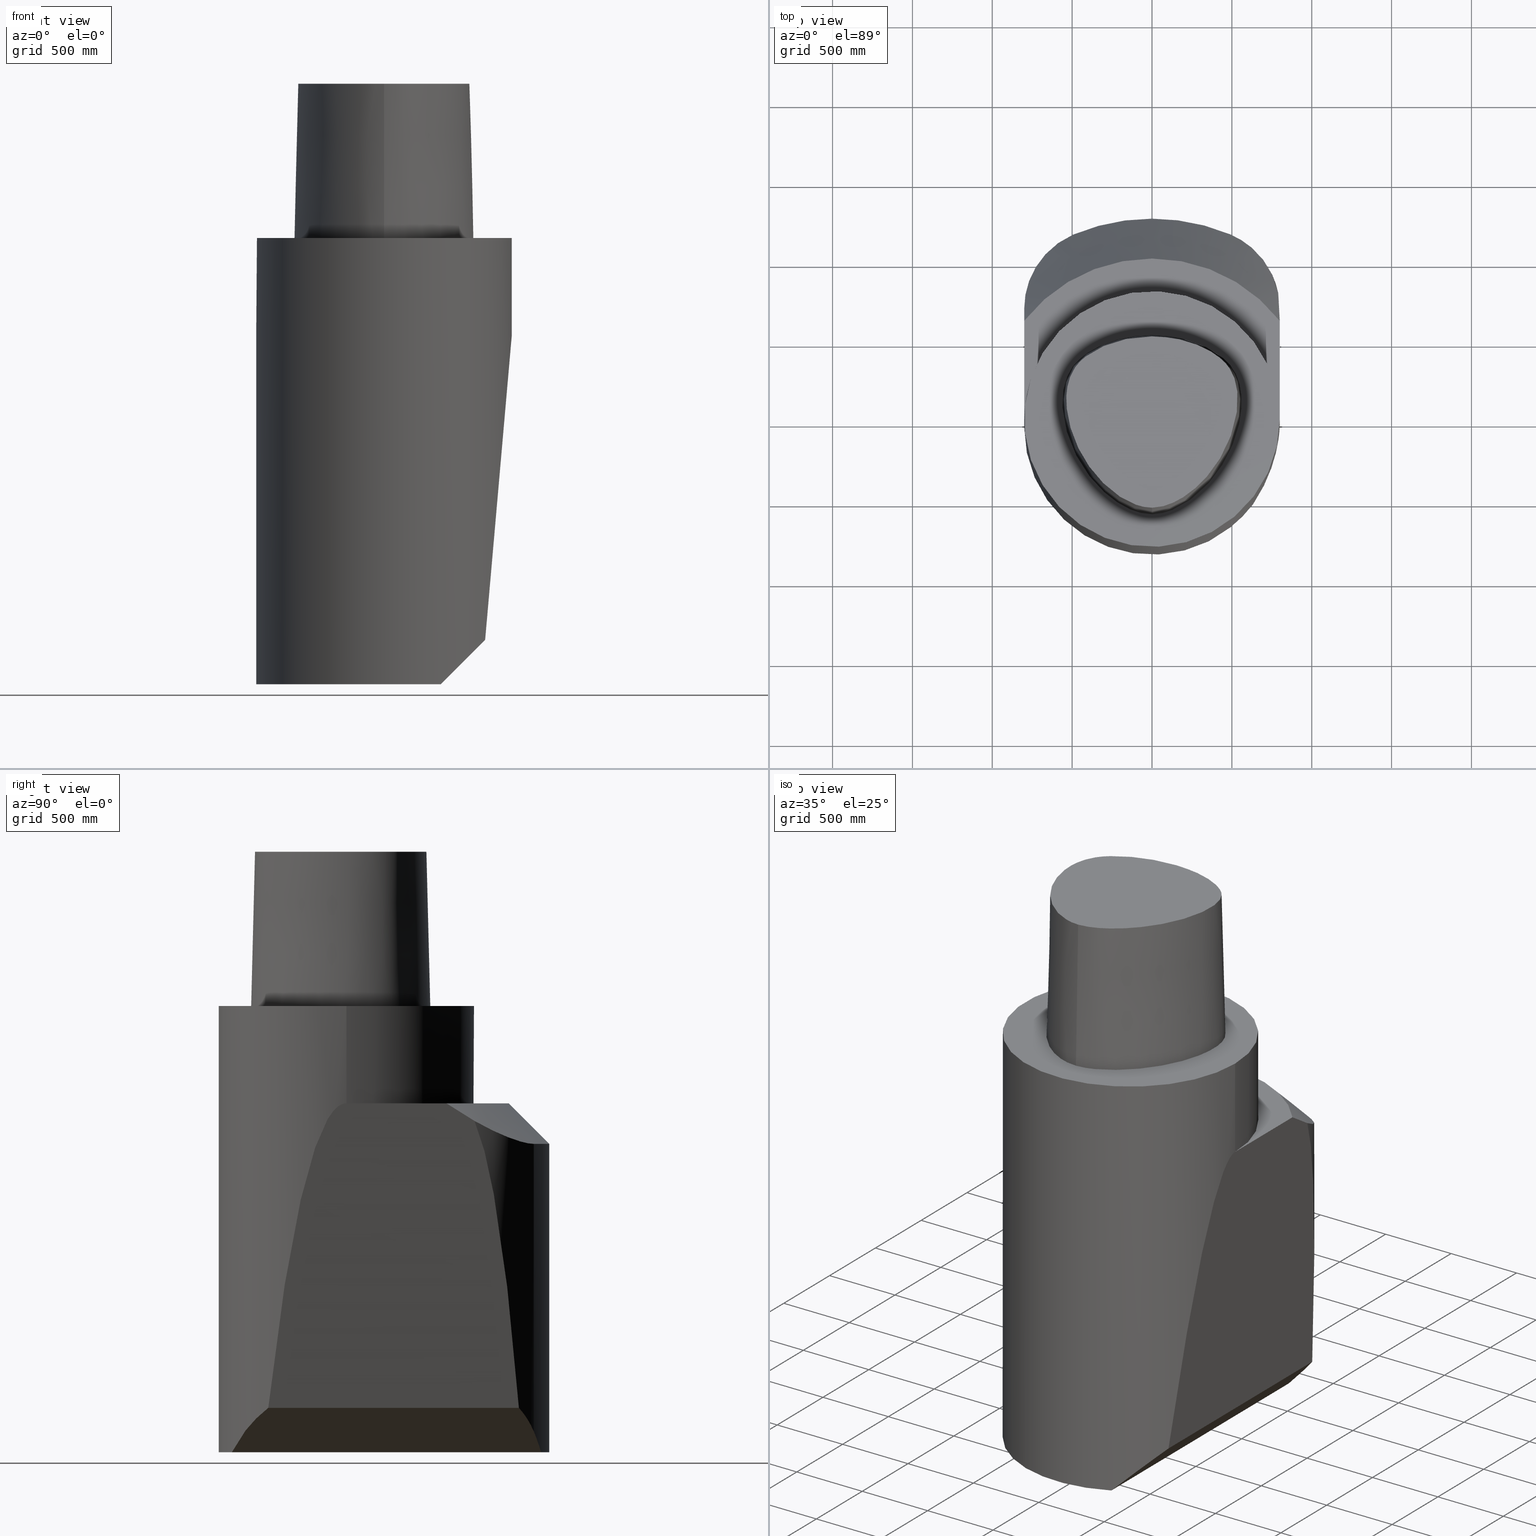
[diagram: canonical four-view strip — front | top / right | iso, engineering-drawing reading convention]
A machine part, canonical four-view strip (front | top / right | iso — engineering-drawing reading convention). The complete STEP part file that produces these views, byte-faithful:
ISO-10303-21;
HEADER;
FILE_DESCRIPTION((''),'1');
FILE_NAME('V:/01_Dxf_Field-HP\X2\FF71FF6FFF8CFF9F5916\X0\2013/BIGKAISER\X2\FF76FF80FF9BFF78FF9E63B28F095206\X0\_BKUS_201803/C6-BH/C6-180-BH1.000L-4.375.stp','2018-03-14T08:52:44',(''),(''),'Spatial Interop R21 SP3','Kubotek KeyCreator 2011 V10.0.2 (22737)',' ');
FILE_SCHEMA(('automotive_design'));
ENDSEC;
DATA;
#1=MECHANICAL_DESIGN_GEOMETRIC_PRESENTATION_REPRESENTATION(' ',(#10,#11,#12,#13,#14,#15,#16,#17,#18,#19,#20,#21,#22,#23,#24,#25,#26,#27,#28,#29,#30,#31,#32,#33,#34,#35,#36,#37,#38,#39,#40,#41,#42,#43,#44,#45,#46,#47,#48,#49,#50,#51,#52,#53,#54,#55,#56,#57,#58,#59,#60,#61,#62,#63,#64,#65,#66,#67,#68,#69,#70,#71,#72,#73,#74,#75,#76,#77),#6);
#2=PRODUCT_DEFINITION_CONTEXT('',#78,'design');
#3=APPLICATION_PROTOCOL_DEFINITION('INTERNATIONAL STANDARD','automotive_design',1994,#78);
#4=PRODUCT_CATEGORY_RELATIONSHIP('NONE','NONE',#79,#80);
#5=SHAPE_DEFINITION_REPRESENTATION(#81,#82);
#6= (GEOMETRIC_REPRESENTATION_CONTEXT(3)GLOBAL_UNCERTAINTY_ASSIGNED_CONTEXT((#85))GLOBAL_UNIT_ASSIGNED_CONTEXT((#87,#88,#89))REPRESENTATION_CONTEXT('NONE','WORKSPACE'));
#10=STYLED_ITEM('',(#91),#92);
#11=STYLED_ITEM('',(#93,#94),#95);
#12=STYLED_ITEM('',(#96),#97);
#13=STYLED_ITEM('',(#98),#99);
#14=STYLED_ITEM('',(#100),#101);
#15=STYLED_ITEM('',(#102,#103),#104);
#16=STYLED_ITEM('',(#105),#106);
#17=STYLED_ITEM('',(#107),#108);
#18=STYLED_ITEM('',(#109,#110),#111);
#19=STYLED_ITEM('',(#112),#113);
#20=STYLED_ITEM('',(#114),#115);
#21=STYLED_ITEM('',(#116,#117),#118);
#22=STYLED_ITEM('',(#119,#120),#121);
#23=STYLED_ITEM('',(#122),#123);
#24=STYLED_ITEM('',(#124),#125);
#25=STYLED_ITEM('',(#126,#127),#128);
#26=STYLED_ITEM('',(#129),#130);
#27=STYLED_ITEM('',(#131),#132);
#28=STYLED_ITEM('',(#133),#134);
#29=STYLED_ITEM('',(#135),#136);
#30=STYLED_ITEM('',(#137),#138);
#31=STYLED_ITEM('',(#139,#140),#141);
#32=STYLED_ITEM('',(#142),#143);
#33=STYLED_ITEM('',(#144),#145);
#34=STYLED_ITEM('',(#146),#147);
#35=STYLED_ITEM('',(#148),#149);
#36=STYLED_ITEM('',(#150),#151);
#37=STYLED_ITEM('',(#152,#153),#154);
#38=STYLED_ITEM('',(#155,#156),#157);
#39=STYLED_ITEM('',(#158,#159),#160);
#40=STYLED_ITEM('',(#161),#162);
#41=STYLED_ITEM('',(#163,#164),#165);
#42=STYLED_ITEM('',(#166),#167);
#43=STYLED_ITEM('',(#168),#169);
#44=STYLED_ITEM('',(#170,#171),#172);
#45=STYLED_ITEM('',(#173),#174);
#46=STYLED_ITEM('',(#175,#176),#177);
#47=STYLED_ITEM('',(#178),#179);
#48=STYLED_ITEM('',(#180,#181),#182);
#49=STYLED_ITEM('',(#183),#184);
#50=STYLED_ITEM('',(#185),#186);
#51=STYLED_ITEM('',(#187),#188);
#52=STYLED_ITEM('',(#189),#190);
#53=STYLED_ITEM('',(#191),#192);
#54=STYLED_ITEM('',(#193,#194),#195);
#55=STYLED_ITEM('',(#196,#197),#198);
#56=STYLED_ITEM('',(#199,#200),#201);
#57=STYLED_ITEM('',(#202),#203);
#58=STYLED_ITEM('',(#204),#205);
#59=STYLED_ITEM('',(#206,#207),#208);
#60=STYLED_ITEM('',(#209),#210);
#61=STYLED_ITEM('',(#211),#212);
#62=STYLED_ITEM('',(#213),#214);
#63=STYLED_ITEM('',(#215),#216);
#64=STYLED_ITEM('',(#217),#218);
#65=STYLED_ITEM('',(#219,#220),#221);
#66=STYLED_ITEM('',(#222),#223);
#67=STYLED_ITEM('',(#224),#225);
#68=STYLED_ITEM('',(#226),#227);
#69=STYLED_ITEM('',(#228),#229);
#70=STYLED_ITEM('',(#230),#231);
#71=STYLED_ITEM('',(#232),#233);
#72=STYLED_ITEM('',(#234),#235);
#73=STYLED_ITEM('',(#236),#237);
#74=STYLED_ITEM('',(#238,#239),#240);
#75=STYLED_ITEM('',(#241),#242);
#76=STYLED_ITEM('',(#243,#244),#245);
#77=STYLED_ITEM('',(#246),#247);
#78=APPLICATION_CONTEXT(' ');
#79=PRODUCT_CATEGORY('part','NONE');
#80=PRODUCT_RELATED_PRODUCT_CATEGORY('detail',' ',(#248));
#81=PRODUCT_DEFINITION_SHAPE('NONE','NONE',#249);
#82=ADVANCED_BREP_SHAPE_REPRESENTATION('Unnamed[1]',(#182,#250),#6);
#85=UNCERTAINTY_MEASURE_WITH_UNIT(LENGTH_MEASURE(1.0E-006),#87,'','');
#87= (CONVERSION_BASED_UNIT('INCH',#253)LENGTH_UNIT()NAMED_UNIT(#256));
#88= (NAMED_UNIT(#258)PLANE_ANGLE_UNIT()SI_UNIT($,.RADIAN.));
#89= (NAMED_UNIT(#258)SOLID_ANGLE_UNIT()SI_UNIT($,.STERADIAN.));
#91=PRESENTATION_STYLE_ASSIGNMENT((#264));
#92=EDGE_CURVE('Unnamed[1]',#265,#266,#267,.T.);
#93=PRESENTATION_STYLE_ASSIGNMENT((#268));
#94=PRESENTATION_STYLE_ASSIGNMENT((#269));
#95=ADVANCED_FACE('Unnamed[1]',(#270),#271,.T.);
#96=PRESENTATION_STYLE_ASSIGNMENT((#272));
#97=EDGE_CURVE('Unnamed[1]',#266,#273,#274,.T.);
#98=PRESENTATION_STYLE_ASSIGNMENT((#275));
#99=EDGE_CURVE('Unnamed[1]',#276,#277,#278,.T.);
#100=PRESENTATION_STYLE_ASSIGNMENT((#279));
#101=EDGE_CURVE('Unnamed[1]',#280,#281,#282,.T.);
#102=PRESENTATION_STYLE_ASSIGNMENT((#283));
#103=PRESENTATION_STYLE_ASSIGNMENT((#284));
#104=ADVANCED_FACE('Unnamed[1]',(#285),#286,.T.);
#105=PRESENTATION_STYLE_ASSIGNMENT((#287));
#106=EDGE_CURVE('Unnamed[1]',#288,#289,#290,.T.);
#107=PRESENTATION_STYLE_ASSIGNMENT((#291));
#108=EDGE_CURVE('Unnamed[1]',#292,#293,#294,.T.);
#109=PRESENTATION_STYLE_ASSIGNMENT((#295));
#110=PRESENTATION_STYLE_ASSIGNMENT((#296));
#111=ADVANCED_FACE('Unnamed[1]',(#297),#298,.T.);
#112=PRESENTATION_STYLE_ASSIGNMENT((#299));
#113=EDGE_CURVE('Unnamed[1]',#300,#301,#302,.T.);
#114=PRESENTATION_STYLE_ASSIGNMENT((#303));
#115=EDGE_CURVE('Unnamed[1]',#304,#305,#306,.T.);
#116=PRESENTATION_STYLE_ASSIGNMENT((#307));
#117=PRESENTATION_STYLE_ASSIGNMENT((#308));
#118=ADVANCED_FACE('Unnamed[1]',(#309),#310,.T.);
#119=PRESENTATION_STYLE_ASSIGNMENT((#311));
#120=PRESENTATION_STYLE_ASSIGNMENT((#312));
#121=ADVANCED_FACE('Unnamed[1]',(#313),#314,.T.);
#122=PRESENTATION_STYLE_ASSIGNMENT((#315));
#123=EDGE_CURVE('Unnamed[1]',#273,#316,#317,.T.);
#124=PRESENTATION_STYLE_ASSIGNMENT((#318));
#125=EDGE_CURVE('Unnamed[1]',#319,#320,#321,.T.);
#126=PRESENTATION_STYLE_ASSIGNMENT((#322));
#127=PRESENTATION_STYLE_ASSIGNMENT((#323));
#128=ADVANCED_FACE('Unnamed[1]',(#324),#325,.T.);
#129=PRESENTATION_STYLE_ASSIGNMENT((#326));
#130=EDGE_CURVE('Unnamed[1]',#300,#327,#328,.T.);
#131=PRESENTATION_STYLE_ASSIGNMENT((#329));
#132=EDGE_CURVE('Unnamed[1]',#330,#320,#331,.T.);
#133=PRESENTATION_STYLE_ASSIGNMENT((#332));
#134=EDGE_CURVE('Unnamed[1]',#330,#319,#333,.T.);
#135=PRESENTATION_STYLE_ASSIGNMENT((#334));
#136=EDGE_CURVE('Unnamed[1]',#305,#335,#336,.T.);
#137=PRESENTATION_STYLE_ASSIGNMENT((#337));
#138=EDGE_CURVE('Unnamed[1]',#277,#338,#339,.T.);
#139=PRESENTATION_STYLE_ASSIGNMENT((#340));
#140=PRESENTATION_STYLE_ASSIGNMENT((#341));
#141=ADVANCED_FACE('Unnamed[1]',(#342),#343,.F.);
#142=PRESENTATION_STYLE_ASSIGNMENT((#344));
#143=EDGE_CURVE('Unnamed[1]',#330,#345,#346,.T.);
#144=PRESENTATION_STYLE_ASSIGNMENT((#347));
#145=EDGE_CURVE('Unnamed[1]',#320,#348,#349,.T.);
#146=PRESENTATION_STYLE_ASSIGNMENT((#350));
#147=EDGE_CURVE('Unnamed[1]',#305,#293,#351,.T.);
#148=PRESENTATION_STYLE_ASSIGNMENT((#352));
#149=EDGE_CURVE('Unnamed[1]',#348,#319,#353,.T.);
#150=PRESENTATION_STYLE_ASSIGNMENT((#354));
#151=EDGE_CURVE('Unnamed[1]',#276,#280,#355,.T.);
#152=PRESENTATION_STYLE_ASSIGNMENT((#356));
#153=PRESENTATION_STYLE_ASSIGNMENT((#357));
#154=ADVANCED_FACE('Unnamed[1]',(#358),#359,.T.);
#155=PRESENTATION_STYLE_ASSIGNMENT((#360));
#156=PRESENTATION_STYLE_ASSIGNMENT((#361));
#157=ADVANCED_FACE('Unnamed[1]',(#362,#363),#364,.T.);
#158=PRESENTATION_STYLE_ASSIGNMENT((#365));
#159=PRESENTATION_STYLE_ASSIGNMENT((#366));
#160=ADVANCED_FACE('Unnamed[1]',(#367),#368,.F.);
#161=PRESENTATION_STYLE_ASSIGNMENT((#369));
#162=EDGE_CURVE('Unnamed[1]',#301,#281,#370,.T.);
#163=PRESENTATION_STYLE_ASSIGNMENT((#371));
#164=PRESENTATION_STYLE_ASSIGNMENT((#372));
#165=ADVANCED_FACE('Unnamed[1]',(#373),#374,.F.);
#166=PRESENTATION_STYLE_ASSIGNMENT((#375));
#167=EDGE_CURVE('Unnamed[1]',#376,#338,#377,.T.);
#168=PRESENTATION_STYLE_ASSIGNMENT((#378));
#169=EDGE_CURVE('Unnamed[1]',#265,#379,#380,.T.);
#170=PRESENTATION_STYLE_ASSIGNMENT((#381));
#171=PRESENTATION_STYLE_ASSIGNMENT((#382));
#172=ADVANCED_FACE('Unnamed[1]',(#383),#384,.F.);
#173=PRESENTATION_STYLE_ASSIGNMENT((#385));
#174=EDGE_CURVE('Unnamed[1]',#293,#386,#387,.T.);
#175=PRESENTATION_STYLE_ASSIGNMENT((#388));
#176=PRESENTATION_STYLE_ASSIGNMENT((#389));
#177=ADVANCED_FACE('Unnamed[1]',(#390),#391,.F.);
#178=PRESENTATION_STYLE_ASSIGNMENT((#392));
#179=EDGE_CURVE('Unnamed[1]',#266,#300,#393,.T.);
#180=PRESENTATION_STYLE_ASSIGNMENT((#394));
#181=PRESENTATION_STYLE_ASSIGNMENT((#395));
#182=MANIFOLD_SOLID_BREP('Unnamed[1]',#396);
#183=PRESENTATION_STYLE_ASSIGNMENT((#397));
#184=EDGE_CURVE('Unnamed[1]',#398,#335,#399,.T.);
#185=PRESENTATION_STYLE_ASSIGNMENT((#400));
#186=EDGE_CURVE('Unnamed[1]',#316,#288,#401,.T.);
#187=PRESENTATION_STYLE_ASSIGNMENT((#402));
#188=EDGE_CURVE('Unnamed[1]',#403,#289,#404,.T.);
#189=PRESENTATION_STYLE_ASSIGNMENT((#405));
#190=EDGE_CURVE('Unnamed[1]',#379,#288,#406,.T.);
#191=PRESENTATION_STYLE_ASSIGNMENT((#407));
#192=EDGE_CURVE('Unnamed[1]',#408,#408,#409,.T.);
#193=PRESENTATION_STYLE_ASSIGNMENT((#410));
#194=PRESENTATION_STYLE_ASSIGNMENT((#411));
#195=ADVANCED_FACE('Unnamed[1]',(#412),#413,.T.);
#196=PRESENTATION_STYLE_ASSIGNMENT((#414));
#197=PRESENTATION_STYLE_ASSIGNMENT((#415));
#198=ADVANCED_FACE('Unnamed[1]',(#416),#417,.F.);
#199=PRESENTATION_STYLE_ASSIGNMENT((#418));
#200=PRESENTATION_STYLE_ASSIGNMENT((#419));
#201=ADVANCED_FACE('Unnamed[1]',(#420,#421),#422,.T.);
#202=PRESENTATION_STYLE_ASSIGNMENT((#423));
#203=EDGE_CURVE('Unnamed[1]',#424,#398,#425,.T.);
#204=PRESENTATION_STYLE_ASSIGNMENT((#426));
#205=EDGE_CURVE('Unnamed[1]',#424,#376,#427,.T.);
#206=PRESENTATION_STYLE_ASSIGNMENT((#428));
#207=PRESENTATION_STYLE_ASSIGNMENT((#429));
#208=ADVANCED_FACE('Unnamed[1]',(#430),#431,.T.);
#209=PRESENTATION_STYLE_ASSIGNMENT((#432));
#210=EDGE_CURVE('Unnamed[1]',#292,#304,#433,.T.);
#211=PRESENTATION_STYLE_ASSIGNMENT((#434));
#212=EDGE_CURVE('Unnamed[1]',#376,#386,#435,.T.);
#213=PRESENTATION_STYLE_ASSIGNMENT((#436));
#214=EDGE_CURVE('Unnamed[1]',#345,#348,#437,.T.);
#215=PRESENTATION_STYLE_ASSIGNMENT((#438));
#216=EDGE_CURVE('Unnamed[1]',#335,#265,#439,.T.);
#217=PRESENTATION_STYLE_ASSIGNMENT((#440));
#218=EDGE_CURVE('Unnamed[1]',#338,#403,#441,.T.);
#219=PRESENTATION_STYLE_ASSIGNMENT((#442));
#220=PRESENTATION_STYLE_ASSIGNMENT((#443));
#221=ADVANCED_FACE('Unnamed[1]',(#444),#445,.T.);
#222=PRESENTATION_STYLE_ASSIGNMENT((#446));
#223=EDGE_CURVE('Unnamed[1]',#280,#273,#447,.T.);
#224=PRESENTATION_STYLE_ASSIGNMENT((#448));
#225=EDGE_CURVE('Unnamed[1]',#386,#398,#449,.T.);
#226=PRESENTATION_STYLE_ASSIGNMENT((#450));
#227=EDGE_CURVE('Unnamed[1]',#281,#327,#451,.T.);
#228=PRESENTATION_STYLE_ASSIGNMENT((#452));
#229=EDGE_CURVE('Unnamed[1]',#289,#292,#453,.T.);
#230=PRESENTATION_STYLE_ASSIGNMENT((#454));
#231=EDGE_CURVE('Unnamed[1]',#403,#316,#455,.T.);
#232=PRESENTATION_STYLE_ASSIGNMENT((#456));
#233=EDGE_CURVE('Unnamed[1]',#277,#424,#457,.T.);
#234=PRESENTATION_STYLE_ASSIGNMENT((#458));
#235=EDGE_CURVE('Unnamed[1]',#327,#273,#459,.T.);
#236=PRESENTATION_STYLE_ASSIGNMENT((#460));
#237=EDGE_CURVE('Unnamed[1]',#301,#276,#461,.T.);
#238=PRESENTATION_STYLE_ASSIGNMENT((#462));
#239=PRESENTATION_STYLE_ASSIGNMENT((#463));
#240=ADVANCED_FACE('Unnamed[1]',(#464),#465,.T.);
#241=PRESENTATION_STYLE_ASSIGNMENT((#466));
#242=EDGE_CURVE('Unnamed[1]',#345,#330,#467,.T.);
#243=PRESENTATION_STYLE_ASSIGNMENT((#468));
#244=PRESENTATION_STYLE_ASSIGNMENT((#469));
#245=ADVANCED_FACE('Unnamed[1]',(#470),#471,.T.);
#246=PRESENTATION_STYLE_ASSIGNMENT((#472));
#247=EDGE_CURVE('Unnamed[1]',#379,#304,#473,.T.);
#248=PRODUCT('Unnamed[1]','Unnamed[1]','PART-Unnamed[1]-DESC',(#474));
#249=PRODUCT_DEFINITION('NONE','NONE',#475,#2);
#250=AXIS2_PLACEMENT_3D('',#476,#477,#478);
#253=LENGTH_MEASURE_WITH_UNIT(LENGTH_MEASURE(25.4),#479);
#256=DIMENSIONAL_EXPONENTS(1.0,0.0,0.0,0.0,0.0,0.0,0.0);
#258=DIMENSIONAL_EXPONENTS(0.0,0.0,0.0,0.0,0.0,0.0,0.0);
#264=CURVE_STYLE('',#480,POSITIVE_LENGTH_MEASURE(1000.0),#481);
#265=VERTEX_POINT('',#482);
#266=VERTEX_POINT('',#483);
#267=CIRCLE('',#484,31.5);
#268=SURFACE_STYLE_USAGE(.BOTH.,#485);
#269=CURVE_STYLE('',#486,POSITIVE_LENGTH_MEASURE(1000.0),#487);
#270=FACE_OUTER_BOUND('',#488,.T.);
#271=CONICAL_SURFACE('',#489,45.0000000000013,0.785398163397416);
#272=CURVE_STYLE('',#490,POSITIVE_LENGTH_MEASURE(1000.0),#491);
#273=VERTEX_POINT('',#492);
#274=LINE('',#493,#494);
#275=CURVE_STYLE('',#495,POSITIVE_LENGTH_MEASURE(1000.0),#496);
#276=VERTEX_POINT('',#497);
#277=VERTEX_POINT('',#498);
#278=LINE('',#499,#500);
#279=CURVE_STYLE('',#501,POSITIVE_LENGTH_MEASURE(1000.0),#502);
#280=VERTEX_POINT('',#503);
#281=VERTEX_POINT('',#504);
#282=LINE('',#505,#506);
#283=SURFACE_STYLE_USAGE(.BOTH.,#507);
#284=CURVE_STYLE('',#508,POSITIVE_LENGTH_MEASURE(1000.0),#509);
#285=FACE_OUTER_BOUND('',#510,.T.);
#286=CYLINDRICAL_SURFACE('',#511,20.0);
#287=CURVE_STYLE('',#512,POSITIVE_LENGTH_MEASURE(1000.0),#513);
#288=VERTEX_POINT('',#514);
#289=VERTEX_POINT('',#515);
#290=LINE('',#516,#517);
#291=CURVE_STYLE('',#518,POSITIVE_LENGTH_MEASURE(1000.0),#519);
#292=VERTEX_POINT('',#520);
#293=VERTEX_POINT('',#521);
#294=B_SPLINE_CURVE_WITH_KNOTS('',3,(#522,#523,#524,#525,#526,#527,#528,#529,#530,#531,#532,#533,#534,#535,#536,#537),.UNSPECIFIED.,.F.,.F.,(4,2,2,2,2,2,2,4),(3.99685533282081,7.99371066564163,11.9905659984624,15.9874213312833,19.2410907200873,22.4947601088912,25.7484294976952,29.0020988864992),.UNSPECIFIED.);
#295=SURFACE_STYLE_USAGE(.BOTH.,#538);
#296=CURVE_STYLE('',#539,POSITIVE_LENGTH_MEASURE(1000.0),#540);
#297=FACE_OUTER_BOUND('',#541,.T.);
#298=PLANE('',#542);
#299=CURVE_STYLE('',#543,POSITIVE_LENGTH_MEASURE(1000.0),#544);
#300=VERTEX_POINT('',#545);
#301=VERTEX_POINT('',#546);
#302=LINE('',#547,#548);
#303=CURVE_STYLE('',#549,POSITIVE_LENGTH_MEASURE(1000.0),#550);
#304=VERTEX_POINT('',#551);
#305=VERTEX_POINT('',#552);
#306=ELLIPSE('',#553,28.284271247462,20.0);
#307=SURFACE_STYLE_USAGE(.BOTH.,#554);
#308=CURVE_STYLE('',#555,POSITIVE_LENGTH_MEASURE(1000.0),#556);
#309=FACE_OUTER_BOUND('',#557,.T.);
#310=CYLINDRICAL_SURFACE('',#558,50.0000000000007);
#311=SURFACE_STYLE_USAGE(.BOTH.,#559);
#312=CURVE_STYLE('',#560,POSITIVE_LENGTH_MEASURE(1000.0),#561);
#313=FACE_OUTER_BOUND('',#562,.T.);
#314=CYLINDRICAL_SURFACE('',#563,50.0);
#315=CURVE_STYLE('',#564,POSITIVE_LENGTH_MEASURE(1000.0),#565);
#316=VERTEX_POINT('',#566);
#317=LINE('',#567,#568);
#318=CURVE_STYLE('',#569,POSITIVE_LENGTH_MEASURE(1000.0),#570);
#319=VERTEX_POINT('',#571);
#320=VERTEX_POINT('',#572);
#321=CIRCLE('',#573,0.949936168436318);
#322=SURFACE_STYLE_USAGE(.BOTH.,#574);
#323=CURVE_STYLE('',#575,POSITIVE_LENGTH_MEASURE(1000.0),#576);
#324=FACE_OUTER_BOUND('',#577,.T.);
#325=PLANE('',#578);
#326=CURVE_STYLE('',#579,POSITIVE_LENGTH_MEASURE(1000.0),#580);
#327=VERTEX_POINT('',#581);
#328=LINE('',#582,#583);
#329=CURVE_STYLE('',#584,POSITIVE_LENGTH_MEASURE(1000.0),#585);
#330=VERTEX_POINT('',#586);
#331=LINE('',#587,#588);
#332=CURVE_STYLE('',#589,POSITIVE_LENGTH_MEASURE(1000.0),#590);
#333=LINE('',#591,#592);
#334=CURVE_STYLE('',#593,POSITIVE_LENGTH_MEASURE(1000.0),#594);
#335=VERTEX_POINT('',#595);
#336=ELLIPSE('',#596,70.710678118655,50.0);
#337=CURVE_STYLE('',#597,POSITIVE_LENGTH_MEASURE(1000.0),#598);
#338=VERTEX_POINT('',#599);
#339=LINE('',#600,#601);
#340=SURFACE_STYLE_USAGE(.BOTH.,#602);
#341=CURVE_STYLE('',#603,POSITIVE_LENGTH_MEASURE(1000.0),#604);
#342=FACE_OUTER_BOUND('',#605,.T.);
#343=PLANE('',#606);
#344=CURVE_STYLE('',#607,POSITIVE_LENGTH_MEASURE(1000.0),#608);
#345=VERTEX_POINT('',#609);
#346=B_SPLINE_CURVE_WITH_KNOTS('',3,(#610,#611,#612,#613,#614,#615,#616,#617,#618,#619,#620,#621,#622,#623,#624,#625),.UNSPECIFIED.,.F.,.F.,(4,1,1,1,1,1,1,1,1,1,1,1,1,4),(0.0,0.447924670568964,0.9388024242536,1.50591409090711,2.07314340012323,2.72424957442464,3.2253501842849,3.80982102049476,4.34867996267067,4.85900173381144,5.37972031856977,6.03459825488646,6.61113557741484,6.61513393087395),.UNSPECIFIED.);
#347=CURVE_STYLE('',#626,POSITIVE_LENGTH_MEASURE(1000.0),#627);
#348=VERTEX_POINT('',#628);
#349=B_SPLINE_CURVE_WITH_KNOTS('',3,(#629,#630,#631,#632,#633,#634,#635,#636,#637,#638,#639,#640,#641,#642,#643,#644,#645),.UNSPECIFIED.,.F.,.F.,(4,1,1,1,1,1,1,1,1,1,1,1,1,1,4),(-13.2302678617486,-12.816821991069,-12.4033761203893,-11.9899302497097,-11.57648437903,-11.1630385083504,-10.9563155730106,-10.7495926376707,-10.3361467669911,-9.92270089631145,-9.09580915495216,-8.26891741359287,-7.44202567223358,-7.02857980155394,-6.6151339308743),.UNSPECIFIED.);
#350=CURVE_STYLE('',#646,POSITIVE_LENGTH_MEASURE(1000.0),#647);
#351=LINE('',#648,#649);
#352=CURVE_STYLE('',#650,POSITIVE_LENGTH_MEASURE(1000.0),#651);
#353=B_SPLINE_CURVE_WITH_KNOTS('',3,(#652,#653,#654,#655,#656,#657,#658,#659,#660,#661,#662,#663,#664,#665,#666,#667,#668,#669),.UNSPECIFIED.,.F.,.F.,(4,1,1,1,1,1,1,1,1,2,1,1,1,1,4),(-6.6151339308743,-6.20168806019465,-5.78824218951501,-5.37479631883537,-4.96135044815572,-4.13445870679644,-3.30756696543715,-2.89412109475751,-2.48067522407786,-2.06722935339822,-1.65378348271857,-1.24033761203893,-0.826891741359287,-0.413445870679644,0.0),.UNSPECIFIED.);
#354=CURVE_STYLE('',#670,POSITIVE_LENGTH_MEASURE(1000.0),#671);
#355=LINE('',#672,#673);
#356=SURFACE_STYLE_USAGE(.BOTH.,#674);
#357=CURVE_STYLE('',#675,POSITIVE_LENGTH_MEASURE(1000.0),#676);
#358=FACE_OUTER_BOUND('',#677,.T.);
#359=PLANE('',#678);
#360=SURFACE_STYLE_USAGE(.BOTH.,#679);
#361=CURVE_STYLE('',#680,POSITIVE_LENGTH_MEASURE(1000.0),#681);
#362=FACE_BOUND('',#682,.T.);
#363=FACE_BOUND('',#683,.T.);
#364=CYLINDRICAL_SURFACE('',#684,31.5);
#365=SURFACE_STYLE_USAGE(.BOTH.,#685);
#366=CURVE_STYLE('',#686,POSITIVE_LENGTH_MEASURE(1000.0),#687);
#367=FACE_OUTER_BOUND('',#688,.T.);
#368=PLANE('',#689);
#369=CURVE_STYLE('',#690,POSITIVE_LENGTH_MEASURE(1000.0),#691);
#370=LINE('',#692,#693);
#371=SURFACE_STYLE_USAGE(.BOTH.,#694);
#372=CURVE_STYLE('',#695,POSITIVE_LENGTH_MEASURE(1000.0),#696);
#373=FACE_OUTER_BOUND('',#697,.T.);
#374=PLANE('',#698);
#375=CURVE_STYLE('',#699,POSITIVE_LENGTH_MEASURE(1000.0),#700);
#376=VERTEX_POINT('',#701);
#377=B_SPLINE_CURVE_WITH_KNOTS('',3,(#702,#703,#704,#705,#706,#707,#708,#709,#710,#711,#712,#713,#714,#715,#716,#717,#718,#719),.UNSPECIFIED.,.F.,.F.,(4,2,2,2,2,2,2,2,4),(25.7528245711178,29.0069489375672,32.2610733040165,35.5151976704659,38.7693220369153,42.0234464033646,46.021059271307,50.0186721392495,54.0162850071919),.UNSPECIFIED.);
#378=CURVE_STYLE('',#720,POSITIVE_LENGTH_MEASURE(1000.0),#721);
#379=VERTEX_POINT('',#722);
#380=ELLIPSE('',#723,44.5477272147526,31.5);
#381=SURFACE_STYLE_USAGE(.BOTH.,#724);
#382=CURVE_STYLE('',#725,POSITIVE_LENGTH_MEASURE(1000.0),#726);
#383=FACE_OUTER_BOUND('',#727,.T.);
#384=PLANE('',#728);
#385=CURVE_STYLE('',#729,POSITIVE_LENGTH_MEASURE(1000.0),#730);
#386=VERTEX_POINT('',#731);
#387=B_SPLINE_CURVE_WITH_KNOTS('',3,(#732,#733,#734,#735,#736,#737,#738,#739,#740,#741,#742,#743,#744,#745),.UNSPECIFIED.,.F.,.F.,(4,2,2,2,2,2,4),(51.7908781094984,56.4993030721826,61.2077280348668,65.916152997551,70.6245779602351,75.3330029229193,80.0417454363844),.UNSPECIFIED.);
#388=SURFACE_STYLE_USAGE(.BOTH.,#746);
#389=CURVE_STYLE('',#747,POSITIVE_LENGTH_MEASURE(1000.0),#748);
#390=FACE_OUTER_BOUND('',#749,.T.);
#391=PLANE('',#750);
#392=CURVE_STYLE('',#751,POSITIVE_LENGTH_MEASURE(1000.0),#752);
#393=LINE('',#753,#754);
#394=SURFACE_STYLE_USAGE(.BOTH.,#755);
#395=CURVE_STYLE('',#756,POSITIVE_LENGTH_MEASURE(1000.0),#757);
#396=CLOSED_SHELL('',(#195,#221,#245,#154,#165,#177,#160,#128,#172,#141,#121,#208,#157,#240,#104,#198,#201,#111,#95,#118));
#397=CURVE_STYLE('',#758,POSITIVE_LENGTH_MEASURE(1000.0),#759);
#398=VERTEX_POINT('',#760);
#399=CIRCLE('',#761,50.0);
#400=CURVE_STYLE('',#762,POSITIVE_LENGTH_MEASURE(1000.0),#763);
#401=CIRCLE('',#764,31.5);
#402=CURVE_STYLE('',#765,POSITIVE_LENGTH_MEASURE(1000.0),#766);
#403=VERTEX_POINT('',#767);
#404=CIRCLE('',#768,40.000000000002);
#405=CURVE_STYLE('',#769,POSITIVE_LENGTH_MEASURE(1000.0),#770);
#406=ELLIPSE('',#771,361.421967238612,31.5);
#407=CURVE_STYLE('',#772,POSITIVE_LENGTH_MEASURE(1000.0),#773);
#408=VERTEX_POINT('',#774);
#409=CIRCLE('',#775,31.5);
#410=SURFACE_STYLE_USAGE(.BOTH.,#776);
#411=CURVE_STYLE('',#777,POSITIVE_LENGTH_MEASURE(1000.0),#778);
#412=FACE_OUTER_BOUND('',#779,.T.);
#413=B_SPLINE_SURFACE_WITH_KNOTS('',3,3,((#780,#781,#782,#783),(#784,#785,#786,#787),(#788,#789,#790,#791),(#792,#793,#794,#795),(#796,#797,#798,#799),(#800,#801,#802,#803),(#804,#805,#806,#807),(#808,#809,#810,#811),(#812,#813,#814,#815),(#816,#817,#818,#819),(#820,#821,#822,#823),(#824,#825,#826,#827),(#828,#829,#830,#831),(#832,#833,#834,#835),(#836,#837,#838,#839),(#840,#841,#842,#843),(#844,#845,#846,#847)),.UNSPECIFIED.,.F.,.F.,.F.,(4,1,1,1,1,1,1,1,1,1,1,1,1,1,4),(4,4),(-13.2302678617486,-12.816821991069,-12.4033761203893,-11.9899302497097,-11.57648437903,-11.1630385083504,-10.9563155730106,-10.7495926376707,-10.3361467669911,-9.92270089631145,-9.09580915495216,-8.26891741359287,-7.44202567223358,-7.02857980155394,-6.6151339308743),(-3.8,0.0),.UNSPECIFIED.);
#414=SURFACE_STYLE_USAGE(.BOTH.,#848);
#415=CURVE_STYLE('',#849,POSITIVE_LENGTH_MEASURE(1000.0),#850);
#416=FACE_OUTER_BOUND('',#851,.T.);
#417=PLANE('',#852);
#418=SURFACE_STYLE_USAGE(.BOTH.,#853);
#419=CURVE_STYLE('',#854,POSITIVE_LENGTH_MEASURE(1000.0),#855);
#420=FACE_BOUND('',#856,.T.);
#421=FACE_OUTER_BOUND('',#857,.T.);
#422=PLANE('',#858);
#423=CURVE_STYLE('',#859,POSITIVE_LENGTH_MEASURE(1000.0),#860);
#424=VERTEX_POINT('',#861);
#425=CIRCLE('',#862,50.0000000000007);
#426=CURVE_STYLE('',#863,POSITIVE_LENGTH_MEASURE(1000.0),#864);
#427=LINE('',#865,#866);
#428=SURFACE_STYLE_USAGE(.BOTH.,#867);
#429=CURVE_STYLE('',#868,POSITIVE_LENGTH_MEASURE(1000.0),#869);
#430=FACE_OUTER_BOUND('',#870,.T.);
#431=PLANE('',#871);
#432=CURVE_STYLE('',#872,POSITIVE_LENGTH_MEASURE(1000.0),#873);
#433=ELLIPSE('',#874,229.474264913404,20.0);
#434=CURVE_STYLE('',#875,POSITIVE_LENGTH_MEASURE(1000.0),#876);
#435=CIRCLE('',#877,50.0000000000006);
#436=CURVE_STYLE('',#878,POSITIVE_LENGTH_MEASURE(1000.0),#879);
#437=LINE('',#880,#881);
#438=CURVE_STYLE('',#882,POSITIVE_LENGTH_MEASURE(1000.0),#883);
#439=LINE('',#884,#885);
#440=CURVE_STYLE('',#886,POSITIVE_LENGTH_MEASURE(1000.0),#887);
#441=(B_SPLINE_CURVE(2,(#889,#890,#891),.UNSPECIFIED.,.F.,.F.)B_SPLINE_CURVE_WITH_KNOTS((3,3),(0.0,17.3552936339432),.UNSPECIFIED.)RATIONAL_B_SPLINE_CURVE((1.0,1.01264270198957,1.0))BOUNDED_CURVE()REPRESENTATION_ITEM('')GEOMETRIC_REPRESENTATION_ITEM()CURVE());
#442=SURFACE_STYLE_USAGE(.BOTH.,#898);
#443=CURVE_STYLE('',#899,POSITIVE_LENGTH_MEASURE(1000.0),#900);
#444=FACE_OUTER_BOUND('',#901,.T.);
#445=B_SPLINE_SURFACE_WITH_KNOTS('',3,3,((#902,#903,#904,#905),(#906,#907,#908,#909),(#910,#911,#912,#913),(#914,#915,#916,#917),(#918,#919,#920,#921),(#922,#923,#924,#925),(#926,#927,#928,#929),(#930,#931,#932,#933),(#934,#935,#936,#937),(#938,#939,#940,#941),(#942,#943,#944,#945),(#946,#947,#948,#949),(#950,#951,#952,#953),(#954,#955,#956,#957),(#958,#959,#960,#961),(#962,#963,#964,#965),(#966,#967,#968,#969),(#970,#971,#972,#973)),.UNSPECIFIED.,.F.,.F.,.F.,(4,1,1,1,1,1,1,1,1,2,1,1,1,1,4),(4,4),(-6.6151339308743,-6.20168806019465,-5.78824218951501,-5.37479631883537,-4.96135044815572,-4.13445870679644,-3.30756696543715,-2.89412109475751,-2.48067522407786,-2.06722935339822,-1.65378348271857,-1.24033761203893,-0.826891741359287,-0.413445870679644,0.0),(-3.8,0.0),.UNSPECIFIED.);
#446=CURVE_STYLE('',#974,POSITIVE_LENGTH_MEASURE(1000.0),#975);
#447=LINE('',#976,#977);
#448=CURVE_STYLE('',#978,POSITIVE_LENGTH_MEASURE(1000.0),#979);
#449=LINE('',#980,#981);
#450=CURVE_STYLE('',#982,POSITIVE_LENGTH_MEASURE(1000.0),#983);
#451=LINE('',#984,#985);
#452=CURVE_STYLE('',#986,POSITIVE_LENGTH_MEASURE(1000.0),#987);
#453=(B_SPLINE_CURVE(2,(#989,#990,#991),.UNSPECIFIED.,.F.,.F.)B_SPLINE_CURVE_WITH_KNOTS((3,3),(0.0,17.9505613842272),.UNSPECIFIED.)RATIONAL_B_SPLINE_CURVE((1.0,1.01227031404473,1.0))BOUNDED_CURVE()REPRESENTATION_ITEM('')GEOMETRIC_REPRESENTATION_ITEM()CURVE());
#454=CURVE_STYLE('',#998,POSITIVE_LENGTH_MEASURE(1000.0),#999);
#455=LINE('',#1000,#1001);
#456=CURVE_STYLE('',#1002,POSITIVE_LENGTH_MEASURE(1000.0),#1003);
#457=CIRCLE('',#1004,20.0);
#458=CURVE_STYLE('',#1005,POSITIVE_LENGTH_MEASURE(1000.0),#1006);
#459=LINE('',#1007,#1008);
#460=CURVE_STYLE('',#1009,POSITIVE_LENGTH_MEASURE(1000.0),#1010);
#461=LINE('',#1011,#1012);
#462=SURFACE_STYLE_USAGE(.BOTH.,#1013);
#463=CURVE_STYLE('',#1014,POSITIVE_LENGTH_MEASURE(1000.0),#1015);
#464=FACE_OUTER_BOUND('',#1016,.T.);
#465=CYLINDRICAL_SURFACE('',#1017,20.0);
#466=CURVE_STYLE('',#1018,POSITIVE_LENGTH_MEASURE(1000.0),#1019);
#467=B_SPLINE_CURVE_WITH_KNOTS('',3,(#1020,#1021,#1022,#1023,#1024,#1025,#1026,#1027,#1028,#1029,#1030,#1031,#1032,#1033,#1034,#1035),.UNSPECIFIED.,.F.,.F.,(4,1,1,1,1,1,1,1,1,1,1,1,1,4),(6.61513393087476,6.99917207152274,7.48193246986995,7.96289324787093,8.45540287038584,9.10291653679981,9.67129810936083,10.1618749681153,10.6358867802489,11.1080734988593,11.6043706019633,12.09451993853,12.6985979284494,13.2302678617486),.UNSPECIFIED.);
#468=SURFACE_STYLE_USAGE(.BOTH.,#1036);
#469=CURVE_STYLE('',#1037,POSITIVE_LENGTH_MEASURE(1000.0),#1038);
#470=FACE_OUTER_BOUND('',#1039,.T.);
#471=CONICAL_SURFACE('',#1040,1.0,0.0249931148600041);
#472=CURVE_STYLE('',#1041,POSITIVE_LENGTH_MEASURE(1000.0),#1042);
#473=LINE('',#1043,#1044);
#474=PRODUCT_CONTEXT('',#78,'mechanical');
#475=PRODUCT_DEFINITION_FORMATION_WITH_SPECIFIED_SOURCE(' ','NONE',#248,.NOT_KNOWN.);
#476=CARTESIAN_POINT('',(0.0,0.0,0.0));
#477=DIRECTION('',(0.0,0.0,1.0));
#478=DIRECTION('',(1.0,0.0,0.0));
#479= (NAMED_UNIT(#256)LENGTH_UNIT()SI_UNIT(.MILLI.,.METRE.));
#480=DRAUGHTING_PRE_DEFINED_CURVE_FONT('continuous');
#481=COLOUR_RGB('',0.0,1.0,0.0);
#482=CARTESIAN_POINT('',(13.9999999999624,-28.2179021190636,-110.000000000098));
#483=CARTESIAN_POINT('',(-31.5,2.55437894524082E-014,-109.999999999992));
#484=AXIS2_PLACEMENT_3D('',#1046,#1047,#1048);
#485=SURFACE_SIDE_STYLE('',(#1049));
#486=DRAUGHTING_PRE_DEFINED_CURVE_FONT('continuous');
#487=COLOUR_RGB('',0.0,1.0,0.0);
#488=EDGE_LOOP('',(#1050,#1051,#1052,#1053,#1054,#1055,#1056));
#489=AXIS2_PLACEMENT_3D('',#1057,#1058,#1059);
#490=DRAUGHTING_PRE_DEFINED_CURVE_FONT('continuous');
#491=COLOUR_RGB('',0.0,1.0,0.0);
#492=CARTESIAN_POINT('',(-31.5,-5.28939329335578E-014,-29.9999999999993));
#493=CARTESIAN_POINT('',(-31.5,1.85633026972678E-014,-224.0));
#494=VECTOR('',#1060,1.0);
#495=DRAUGHTING_PRE_DEFINED_CURVE_FONT('continuous');
#496=COLOUR_RGB('',0.0,1.0,0.0);
#497=CARTESIAN_POINT('',(-31.5000000000001,25.3999999999999,-109.999999999992));
#498=CARTESIAN_POINT('',(-31.5000000000001,27.710094358173,-109.999999999992));
#499=CARTESIAN_POINT('',(-31.5,6.92752358954313,-109.999999999992));
#500=VECTOR('',#1061,1.0);
#501=DRAUGHTING_PRE_DEFINED_CURVE_FONT('continuous');
#502=COLOUR_RGB('',0.0,1.0,0.0);
#503=CARTESIAN_POINT('',(-31.5000000000001,25.4,-29.9999999999993));
#504=CARTESIAN_POINT('',(-6.10000000000846,25.3999999999999,-29.9999999999993));
#505=CARTESIAN_POINT('',(-6.10000000000846,25.3999999999999,-29.9999999999993));
#506=VECTOR('',#1062,1.0);
#507=SURFACE_SIDE_STYLE('',(#1063));
#508=DRAUGHTING_PRE_DEFINED_CURVE_FONT('continuous');
#509=COLOUR_RGB('',0.0,1.0,0.0);
#510=EDGE_LOOP('',(#1064,#1065,#1066,#1067));
#511=AXIS2_PLACEMENT_3D('',#1068,#1069,#1070);
#512=DRAUGHTING_PRE_DEFINED_CURVE_FONT('continuous');
#513=COLOUR_RGB('',0.0,1.0,0.0);
#514=CARTESIAN_POINT('',(31.5,-7.25603228494807E-015,-24.0));
#515=CARTESIAN_POINT('',(31.4999999999998,24.6525860712455,-24.0));
#516=CARTESIAN_POINT('',(31.4999999999998,6.92662721561405,-24.0));
#517=VECTOR('',#1071,1.0);
#518=DRAUGHTING_PRE_DEFINED_CURVE_FONT('continuous');
#519=COLOUR_RGB('',0.0,1.0,0.0);
#520=CARTESIAN_POINT('',(31.1202210060076,31.5855458145115,-28.3408937648218));
#521=CARTESIAN_POINT('',(19.169546318746,46.1775147707604,-33.99834373727));
#522=CARTESIAN_POINT('',(31.4836714121862,26.8985008861559,-25.4095510180065));
#523=CARTESIAN_POINT('',(31.5307709689678,28.0633682666181,-26.2020264842946));
#524=CARTESIAN_POINT('',(31.4762891277182,29.2735751745386,-26.9734597059358));
#525=CARTESIAN_POINT('',(31.1345513801991,31.7055286309925,-28.4254444635838));
#526=CARTESIAN_POINT('',(30.8469485336614,32.9286082486609,-29.1069395953025));
#527=CARTESIAN_POINT('',(30.04246955808,35.3059537151175,-30.3451062098025));
#528=CARTESIAN_POINT('',(29.5254030342725,36.4601202044391,-30.9018447518448));
#529=CARTESIAN_POINT('',(28.4181286849675,38.420893460769,-31.779588988991));
#530=CARTESIAN_POINT('',(27.826692802136,39.3098035346396,-32.1507569772398));
#531=CARTESIAN_POINT('',(26.4633599374821,41.0217333989237,-32.8057572576398));
#532=CARTESIAN_POINT('',(25.6913906263684,41.8446750714734,-33.0896431678623));
#533=CARTESIAN_POINT('',(24.0041260234216,43.3567529970739,-33.5456837693404));
#534=CARTESIAN_POINT('',(23.0874184455948,44.0470382876636,-33.7182271613306));
#535=CARTESIAN_POINT('',(21.1697701190347,45.25007503279,-33.944570245779));
#536=CARTESIAN_POINT('',(20.1687876707419,45.7627649262388,-33.9983438433738));
#537=CARTESIAN_POINT('',(19.1670899300591,46.1785345230162,-33.9983438433738));
#538=SURFACE_SIDE_STYLE('',(#1072));
#539=DRAUGHTING_PRE_DEFINED_CURVE_FONT('continuous');
#540=COLOUR_RGB('',0.0,1.0,0.0);
#541=EDGE_LOOP('',(#1073,#1074,#1075,#1076));
#542=AXIS2_PLACEMENT_3D('',#1077,#1078,#1079);
#543=DRAUGHTING_PRE_DEFINED_CURVE_FONT('continuous');
#544=COLOUR_RGB('',0.0,1.0,0.0);
#545=CARTESIAN_POINT('',(-6.10000000000846,-3.40367150044949E-014,-110.00000000003));
#546=CARTESIAN_POINT('',(-6.10000000000845,25.3999999999999,-110.00000000003));
#547=CARTESIAN_POINT('',(-6.10000000000845,6.34999999999998,-110.00000000003));
#548=VECTOR('',#1080,1.0);
#549=DRAUGHTING_PRE_DEFINED_CURVE_FONT('continuous');
#550=COLOUR_RGB('',0.0,1.0,0.0);
#551=CARTESIAN_POINT('',(24.9324394536427,42.5243889511943,-99.0675605464172));
#552=CARTESIAN_POINT('',(19.169546318746,46.1775147707604,-104.830453681314));
#553=AXIS2_PLACEMENT_3D('',#1081,#1082,#1083);
#554=SURFACE_SIDE_STYLE('',(#1084));
#555=DRAUGHTING_PRE_DEFINED_CURVE_FONT('continuous');
#556=COLOUR_RGB('',0.0,1.0,0.0);
#557=EDGE_LOOP('',(#1085,#1086,#1087,#1088));
#558=AXIS2_PLACEMENT_3D('',#1089,#1090,#1091);
#559=SURFACE_SIDE_STYLE('',(#1092));
#560=DRAUGHTING_PRE_DEFINED_CURVE_FONT('continuous');
#561=COLOUR_RGB('',0.0,1.0,0.0);
#562=EDGE_LOOP('',(#1093,#1094,#1095,#1096,#1097));
#563=AXIS2_PLACEMENT_3D('',#1098,#1099,#1100);
#564=DRAUGHTING_PRE_DEFINED_CURVE_FONT('continuous');
#565=COLOUR_RGB('',0.0,1.0,0.0);
#566=CARTESIAN_POINT('',(-31.5,3.08097706887413E-014,-24.0));
#567=CARTESIAN_POINT('',(-31.5,1.85633026972678E-014,-224.0));
#568=VECTOR('',#1101,1.0);
#569=DRAUGHTING_PRE_DEFINED_CURVE_FONT('continuous');
#570=COLOUR_RGB('',0.0,1.0,0.0);
#571=CARTESIAN_POINT('',(-0.045171994691285,20.6766009553285,-1.97215226305253E-031));
#572=CARTESIAN_POINT('',(0.044682985379347,20.6765087343109,0.0));
#573=AXIS2_PLACEMENT_3D('',#1102,#1103,#1104);
#574=SURFACE_SIDE_STYLE('',(#1105));
#575=DRAUGHTING_PRE_DEFINED_CURVE_FONT('continuous');
#576=COLOUR_RGB('',0.0,1.0,0.0);
#577=EDGE_LOOP('',(#1106,#1107,#1108,#1109));
#578=AXIS2_PLACEMENT_3D('',#1110,#1111,#1112);
#579=DRAUGHTING_PRE_DEFINED_CURVE_FONT('continuous');
#580=COLOUR_RGB('',0.0,1.0,0.0);
#581=CARTESIAN_POINT('',(-6.10000000000847,-2.91381278079036E-014,-29.9999999999993));
#582=CARTESIAN_POINT('',(-6.10000000000844,-4.1017201759633E-014,-224.0));
#583=VECTOR('',#1113,1.0);
#584=DRAUGHTING_PRE_DEFINED_CURVE_FONT('continuous');
#585=COLOUR_RGB('',0.0,1.0,0.0);
#586=CARTESIAN_POINT('',(-0.001218547003662,19.7276821925089,38.0));
#587=CARTESIAN_POINT('',(-0.001218547003662,19.7276821925089,38.0));
#588=VECTOR('',#1114,38.0118715503078);
#589=DRAUGHTING_PRE_DEFINED_CURVE_FONT('continuous');
#590=COLOUR_RGB('',0.0,1.0,0.0);
#591=CARTESIAN_POINT('',(-0.001218547003662,19.7276821925089,38.0));
#592=VECTOR('',#1115,38.0118715498723);
#593=DRAUGHTING_PRE_DEFINED_CURVE_FONT('continuous');
#594=COLOUR_RGB('',0.0,1.0,0.0);
#595=CARTESIAN_POINT('',(13.9999999999624,47.9987399413341,-110.000000000098));
#596=AXIS2_PLACEMENT_3D('',#1116,#1117,#1118);
#597=DRAUGHTING_PRE_DEFINED_CURVE_FONT('continuous');
#598=COLOUR_RGB('',0.0,1.0,0.0);
#599=CARTESIAN_POINT('',(-31.5000000000001,27.710094358173,-25.9535377452093));
#600=CARTESIAN_POINT('',(-31.5000000000001,27.710094358173,-224.0));
#601=VECTOR('',#1119,1.0);
#602=SURFACE_SIDE_STYLE('',(#1120));
#603=DRAUGHTING_PRE_DEFINED_CURVE_FONT('continuous');
#604=COLOUR_RGB('',0.0,1.0,0.0);
#605=EDGE_LOOP('',(#1121,#1122,#1123,#1124,#1125));
#606=AXIS2_PLACEMENT_3D('',#1126,#1127,#1128);
#607=DRAUGHTING_PRE_DEFINED_CURVE_FONT('continuous');
#608=COLOUR_RGB('',0.0,1.0,0.0);
#609=CARTESIAN_POINT('',(0.038736923393866,-22.5191997536361,38.0));
#610=CARTESIAN_POINT('',(-0.001218547003662,19.7276821925089,38.0));
#611=CARTESIAN_POINT('',(-1.49408492138443,19.6585333605309,38.0));
#612=CARTESIAN_POINT('',(-4.62297391420352,19.513604770166,38.0));
#613=CARTESIAN_POINT('',(-9.56160616752212,18.4291575730197,38.0));
#614=CARTESIAN_POINT('',(-14.5427684976927,16.2697452580488,38.0));
#615=CARTESIAN_POINT('',(-19.4315563551602,12.5302108980807,38.0));
#616=CARTESIAN_POINT('',(-21.306358833612,6.76352894547076,38.0));
#617=CARTESIAN_POINT('',(-21.0724946936277,0.957075236984038,38.0));
#618=CARTESIAN_POINT('',(-19.7876470880144,-4.34628503581652,38.0));
#619=CARTESIAN_POINT('',(-17.5396999600095,-9.33314444653089,38.0));
#620=CARTESIAN_POINT('',(-14.645447733857,-13.7185760345629,38.0));
#621=CARTESIAN_POINT('',(-10.7996726536643,-17.856257282137,38.0));
#622=CARTESIAN_POINT('',(-6.00479510196376,-21.2687382067675,38.0));
#623=CARTESIAN_POINT('',(-1.90747171908525,-22.5250621415864,38.0));
#624=CARTESIAN_POINT('',(0.025424107066464,-22.5192678176378,38.0));
#625=CARTESIAN_POINT('',(0.038736923394311,-22.519199753636,38.0));
#626=DRAUGHTING_PRE_DEFINED_CURVE_FONT('continuous');
#627=COLOUR_RGB('',0.0,1.0,0.0);
#628=CARTESIAN_POINT('',(0.04359356758149,-23.4691235068931,-1.97215226305253E-031));
#629=CARTESIAN_POINT('',(0.044682985379347,20.6765087343109,0.0));
#630=CARTESIAN_POINT('',(1.42379272427753,20.6097915814392,-1.97215226305253E-031));
#631=CARTESIAN_POINT('',(4.2230955003445,20.4837538303966,-1.97215226305253E-031));
#632=CARTESIAN_POINT('',(8.47220762821777,19.6890432607088,0.0));
#633=CARTESIAN_POINT('',(12.5141247708253,18.2434968480404,-1.97215226305253E-031));
#634=CARTESIAN_POINT('',(16.3038624872874,16.1734192182143,-1.97215226305253E-031));
#635=CARTESIAN_POINT('',(19.1446913988473,13.7036723639434,-3.94430452610506E-031));
#636=CARTESIAN_POINT('',(20.7319894342149,11.1014620996188,-1.97215226305253E-031));
#637=CARTESIAN_POINT('',(21.7831756505763,8.28099229708081,9.86076131526265E-032));
#638=CARTESIAN_POINT('',(22.2258240701438,4.60865440596506,-9.86076131526265E-032));
#639=CARTESIAN_POINT('',(21.7436130080666,-1.11326526354485,-2.46519032881566E-031));
#640=CARTESIAN_POINT('',(19.5519487660502,-7.95432366164584,-5.91645678915759E-031));
#641=CARTESIAN_POINT('',(14.9574167123838,-15.2089785567293,-3.94430452610506E-031));
#642=CARTESIAN_POINT('',(9.66840283021945,-20.0827414369705,0.0));
#643=CARTESIAN_POINT('',(4.51628650521788,-22.7946374572188,0.0));
#644=CARTESIAN_POINT('',(1.55867251738073,-23.4612972770043,-1.97215226305253E-031));
#645=CARTESIAN_POINT('',(0.04359356758149,-23.4691235068931,-1.97215226305253E-031));
#646=DRAUGHTING_PRE_DEFINED_CURVE_FONT('continuous');
#647=COLOUR_RGB('',0.0,1.0,0.0);
#648=CARTESIAN_POINT('',(19.169546318746,46.1775147707604,-224.0));
#649=VECTOR('',#1129,1.0);
#650=DRAUGHTING_PRE_DEFINED_CURVE_FONT('continuous');
#651=COLOUR_RGB('',0.0,1.0,0.0);
#652=CARTESIAN_POINT('',(0.04359356758149,-23.4691235068931,-1.97215226305253E-031));
#653=CARTESIAN_POINT('',(-1.4714994713963,-23.4767895315797,-1.97215226305253E-031));
#654=CARTESIAN_POINT('',(-4.43923476371401,-22.821149804767,0.0));
#655=CARTESIAN_POINT('',(-8.35043230079961,-20.8000751253325,0.0));
#656=CARTESIAN_POINT('',(-11.744900222602,-18.1556117874078,1.97215226305253E-031));
#657=CARTESIAN_POINT('',(-15.6989602501314,-14.0406306929147,-9.86076131526265E-032));
#658=CARTESIAN_POINT('',(-19.5352875070682,-8.00624990770787,-9.86076131526265E-032));
#659=CARTESIAN_POINT('',(-21.7205626190491,-1.16081708945282,2.71170936169723E-031));
#660=CARTESIAN_POINT('',(-22.2486616783342,4.54965558738736,3.94430452610506E-031));
#661=CARTESIAN_POINT('',(-21.6646421256468,9.00229539124618,3.94430452610506E-031));
#662=CARTESIAN_POINT('',(-20.3945635471922,11.7780544971003,-9.86076131526265E-032));
#663=CARTESIAN_POINT('',(-18.5925528034471,14.1980602922581,2.95822839457879E-031));
#664=CARTESIAN_POINT('',(-16.3226584122258,16.1777748720707,3.94430452610506E-031));
#665=CARTESIAN_POINT('',(-12.5076407874579,18.2524201541303,3.94430452610506E-031));
#666=CARTESIAN_POINT('',(-8.46776192107786,19.679114377952,-3.94430452610506E-031));
#667=CARTESIAN_POINT('',(-4.23043497193604,20.487781597334,1.97215226305253E-031));
#668=CARTESIAN_POINT('',(-1.42313094248379,20.6127745766442,0.0));
#669=CARTESIAN_POINT('',(-0.045171994691285,20.6766009553285,-1.97215226305253E-031));
#670=DRAUGHTING_PRE_DEFINED_CURVE_FONT('continuous');
#671=COLOUR_RGB('',0.0,1.0,0.0);
#672=CARTESIAN_POINT('',(-31.5000000000001,25.3999999999999,-224.0));
#673=VECTOR('',#1130,1.0);
#674=SURFACE_SIDE_STYLE('',(#1131));
#675=DRAUGHTING_PRE_DEFINED_CURVE_FONT('continuous');
#676=COLOUR_RGB('',0.0,1.0,0.0);
#677=EDGE_LOOP('',(#1132,#1133));
#678=AXIS2_PLACEMENT_3D('',#1134,#1135,#1136);
#679=SURFACE_SIDE_STYLE('',(#1137));
#680=DRAUGHTING_PRE_DEFINED_CURVE_FONT('continuous');
#681=COLOUR_RGB('',0.0,1.0,0.0);
#682=EDGE_LOOP('',(#1138));
#683=EDGE_LOOP('',(#1139,#1140,#1141,#1142,#1143,#1144));
#684=AXIS2_PLACEMENT_3D('',#1145,#1146,#1147);
#685=SURFACE_SIDE_STYLE('',(#1148));
#686=DRAUGHTING_PRE_DEFINED_CURVE_FONT('continuous');
#687=COLOUR_RGB('',0.0,1.0,0.0);
#688=EDGE_LOOP('',(#1149,#1150,#1151,#1152));
#689=AXIS2_PLACEMENT_3D('',#1153,#1154,#1155);
#690=DRAUGHTING_PRE_DEFINED_CURVE_FONT('continuous');
#691=COLOUR_RGB('',0.0,1.0,0.0);
#692=CARTESIAN_POINT('',(-6.10000000000843,25.3999999999999,-224.0));
#693=VECTOR('',#1156,1.0);
#694=SURFACE_SIDE_STYLE('',(#1157));
#695=DRAUGHTING_PRE_DEFINED_CURVE_FONT('continuous');
#696=COLOUR_RGB('',0.0,1.0,0.0);
#697=EDGE_LOOP('',(#1158,#1159,#1160,#1161));
#698=AXIS2_PLACEMENT_3D('',#1162,#1163,#1164);
#699=DRAUGHTING_PRE_DEFINED_CURVE_FONT('continuous');
#700=COLOUR_RGB('',0.0,1.0,0.0);
#701=CARTESIAN_POINT('',(-19.4720041661734,46.0525900873402,-33.9999999999993));
#702=CARTESIAN_POINT('',(-15.9912740201936,47.1992825833284,-33.8346578313695));
#703=CARTESIAN_POINT('',(-17.0943964799877,46.9450685448622,-33.9478644538266));
#704=CARTESIAN_POINT('',(-18.1643867689897,46.5982531012473,-34.0016554433048));
#705=CARTESIAN_POINT('',(-20.1681004955637,45.7666894278164,-34.0016554433048));
#706=CARTESIAN_POINT('',(-21.1692363925338,45.2539642711425,-33.9478644538266));
#707=CARTESIAN_POINT('',(-23.0871640085857,44.0508144823768,-33.7214512089124));
#708=CARTESIAN_POINT('',(-24.0039974557535,43.3604514558362,-33.5488550663357));
#709=CARTESIAN_POINT('',(-25.6914750305883,41.8481871820982,-33.0926781951172));
#710=CARTESIAN_POINT('',(-26.4635319745331,41.0251364661087,-32.8087085442073));
#711=CARTESIAN_POINT('',(-27.8269974150747,39.3129729202713,-32.1535181277358));
#712=CARTESIAN_POINT('',(-28.4184782509614,38.423938232725,-31.7822437033853));
#713=CARTESIAN_POINT('',(-29.5258390652618,36.462837326873,-30.9042276131235));
#714=CARTESIAN_POINT('',(-30.0429248640911,35.3084595234586,-30.3473077978641));
#715=CARTESIAN_POINT('',(-30.8473639987573,32.9306998961041,-29.1087480764684));
#716=CARTESIAN_POINT('',(-31.1349077743321,31.7074174652534,-28.4270410576744));
#717=CARTESIAN_POINT('',(-31.4764624864618,29.2750860626482,-26.9746146615626));
#718=CARTESIAN_POINT('',(-31.5308202847316,28.0647036723589,-26.2029512717335));
#719=CARTESIAN_POINT('',(-31.4835740242651,26.8996813667174,-25.4102437927157));
#720=DRAUGHTING_PRE_DEFINED_CURVE_FONT('continuous');
#721=COLOUR_RGB('',0.0,1.0,0.0);
#722=CARTESIAN_POINT('',(24.9324394536427,-19.25158338658,-99.0675605464172));
#723=AXIS2_PLACEMENT_3D('',#1165,#1166,#1167);
#724=SURFACE_SIDE_STYLE('',(#1168));
#725=DRAUGHTING_PRE_DEFINED_CURVE_FONT('continuous');
#726=COLOUR_RGB('',0.0,1.0,0.0);
#727=EDGE_LOOP('',(#1169,#1170,#1171,#1172,#1173));
#728=AXIS2_PLACEMENT_3D('',#1174,#1175,#1176);
#729=DRAUGHTING_PRE_DEFINED_CURVE_FONT('continuous');
#730=COLOUR_RGB('',0.0,1.0,0.0);
#731=CARTESIAN_POINT('',(-0.00215974573172323,49.9999999533556,-33.9999999999993));
#732=CARTESIAN_POINT('',(23.6459115898771,44.052997292243,-33.9979570117273));
#733=CARTESIAN_POINT('',(22.1814966518667,44.8391810661555,-33.9980835270623));
#734=CARTESIAN_POINT('',(20.6730336621863,45.5546367378678,-33.998213847362));
#735=CARTESIAN_POINT('',(17.5934830443397,46.8304944196465,-33.9984798971886));
#736=CARTESIAN_POINT('',(16.0210177916453,47.3914671794928,-33.9986157457312));
#737=CARTESIAN_POINT('',(12.8383320599857,48.351100271922,-33.998890703415));
#738=CARTESIAN_POINT('',(11.2281103078048,48.7497563817975,-33.9990298126657));
#739=CARTESIAN_POINT('',(7.99943411484802,49.382650340007,-33.9993087412234));
#740=CARTESIAN_POINT('',(6.38081301651385,49.6169115926764,-33.9994485749278));
#741=CARTESIAN_POINT('',(3.16583398429019,49.9255241333955,-33.9997263178511));
#742=CARTESIAN_POINT('',(1.56947497584817,49.9998642271643,-33.999864227163));
#743=CARTESIAN_POINT('',(-1.56958082610766,50.0001354088223,-34.000135408821));
#744=CARTESIAN_POINT('',(-3.16605859430771,49.9260611345788,-34.0002733272821));
#745=CARTESIAN_POINT('',(-4.77367907535406,49.7720123064385,-34.000412207767));
#746=SURFACE_SIDE_STYLE('',(#1177));
#747=DRAUGHTING_PRE_DEFINED_CURVE_FONT('continuous');
#748=COLOUR_RGB('',0.0,1.0,0.0);
#749=EDGE_LOOP('',(#1178,#1179,#1180,#1181));
#750=AXIS2_PLACEMENT_3D('',#1182,#1183,#1184);
#751=DRAUGHTING_PRE_DEFINED_CURVE_FONT('continuous');
#752=COLOUR_RGB('',0.0,1.0,0.0);
#753=CARTESIAN_POINT('',(3.10000000008387,-2.54322501557444E-014,-110.000000000044));
#754=VECTOR('',#1185,1.0);
#755=SURFACE_SIDE_STYLE('',(#1186));
#756=DRAUGHTING_PRE_DEFINED_CURVE_FONT('continuous');
#757=COLOUR_RGB('',0.0,1.0,0.0);
#758=DRAUGHTING_PRE_DEFINED_CURVE_FONT('continuous');
#759=COLOUR_RGB('',0.0,1.0,0.0);
#760=CARTESIAN_POINT('',(-0.00215974704769279,49.9999999533556,-110.000000000114));
#761=AXIS2_PLACEMENT_3D('',#1187,#1188,#1189);
#762=DRAUGHTING_PRE_DEFINED_CURVE_FONT('continuous');
#763=COLOUR_RGB('',0.0,1.0,0.0);
#764=AXIS2_PLACEMENT_3D('',#1190,#1191,#1192);
#765=DRAUGHTING_PRE_DEFINED_CURVE_FONT('continuous');
#766=COLOUR_RGB('',0.0,1.0,0.0);
#767=CARTESIAN_POINT('',(-31.5000000000001,24.6525860712452,-24.0));
#768=AXIS2_PLACEMENT_3D('',#1193,#1194,#1195);
#769=DRAUGHTING_PRE_DEFINED_CURVE_FONT('continuous');
#770=COLOUR_RGB('',0.0,1.0,0.0);
#771=AXIS2_PLACEMENT_3D('',#1196,#1197,#1198);
#772=DRAUGHTING_PRE_DEFINED_CURVE_FONT('continuous');
#773=COLOUR_RGB('',0.0,1.0,0.0);
#774=CARTESIAN_POINT('',(31.5,-5.78645612597124E-015,3.85763741731416E-015));
#775=AXIS2_PLACEMENT_3D('',#1199,#1200,#1201);
#776=SURFACE_SIDE_STYLE('',(#1202));
#777=DRAUGHTING_PRE_DEFINED_CURVE_FONT('continuous');
#778=COLOUR_RGB('',0.0,1.0,0.0);
#779=EDGE_LOOP('',(#1203,#1204,#1205,#1206));
#780=CARTESIAN_POINT('',(-0.001218367817519,19.7276822012873,38.0));
#781=CARTESIAN_POINT('',(0.014082083248157,20.0439577123075,25.3333333333066));
#782=CARTESIAN_POINT('',(0.029382534313671,20.3602332232908,12.6666666666934));
#783=CARTESIAN_POINT('',(0.044682985379347,20.6765087343109,0.0));
#784=CARTESIAN_POINT('',(1.37788651195108,19.6609652834875,38.0));
#785=CARTESIAN_POINT('',(1.3931885827258,19.9772407169847,25.3333333333066));
#786=CARTESIAN_POINT('',(1.40849065356095,20.2935162254648,12.6666666666934));
#787=CARTESIAN_POINT('',(1.42379272427753,20.6097915814392,-1.97215226305253E-031));
#788=CARTESIAN_POINT('',(4.135446440878,19.5347778787784,38.0));
#789=CARTESIAN_POINT('',(4.16466278851883,19.8511031866125,25.3333333333066));
#790=CARTESIAN_POINT('',(4.1938791526746,20.1674284644204,12.6666666666934));
#791=CARTESIAN_POINT('',(4.2230955003445,20.4837538303966,-1.97215226305253E-031));
#792=CARTESIAN_POINT('',(8.213607363795,18.7706026638736,38.0));
#793=CARTESIAN_POINT('',(8.29980745008421,19.0767495109635,25.3333333333066));
#794=CARTESIAN_POINT('',(8.38600751285747,19.3828964329996,12.6666666666934));
#795=CARTESIAN_POINT('',(8.47220762821777,19.6890432607088,0.0));
#796=CARTESIAN_POINT('',(12.1316338645671,17.3698624840857,38.0));
#797=CARTESIAN_POINT('',(12.2591308270381,17.6610739397708,25.3333333333066));
#798=CARTESIAN_POINT('',(12.3866278083543,17.9522853923553,12.6666666666934));
#799=CARTESIAN_POINT('',(12.5141247708253,18.2434968480404,-1.97215226305253E-031));
#800=CARTESIAN_POINT('',(15.7706546153679,15.3789501349612,38.0));
#801=CARTESIAN_POINT('',(15.9483905900895,15.6437731794811,25.3333333333066));
#802=CARTESIAN_POINT('',(16.1261265513272,15.9085961736944,12.6666666666934));
#803=CARTESIAN_POINT('',(16.3038624872874,16.1734192182143,-1.97215226305253E-031));
#804=CARTESIAN_POINT('',(18.4265894256284,13.0570022172893,38.0));
#805=CARTESIAN_POINT('',(18.6659567517146,13.2725589420689,25.3333333333066));
#806=CARTESIAN_POINT('',(18.9053240921419,13.4881156488541,12.6666666666934));
#807=CARTESIAN_POINT('',(19.1446913988473,13.7036723639434,-3.94430452610506E-031));
#808=CARTESIAN_POINT('',(19.8679958653038,10.6923771981998,38.0));
#809=CARTESIAN_POINT('',(20.1559937048299,10.8287388264873,25.3333333333066));
#810=CARTESIAN_POINT('',(20.4439915656177,10.965100461641,12.6666666666934));
#811=CARTESIAN_POINT('',(20.7319894342149,11.1014620996188,-1.97215226305253E-031));
#812=CARTESIAN_POINT('',(20.8470867582337,8.07149548576131,38.0));
#813=CARTESIAN_POINT('',(21.1591164072431,8.14132775555392,25.3333333333066));
#814=CARTESIAN_POINT('',(21.4711459821861,8.21116003697855,12.6666666666934));
#815=CARTESIAN_POINT('',(21.7831756505763,8.28099229708081,9.86076131526265E-032));
#816=CARTESIAN_POINT('',(21.2693244256982,4.61157245650171,38.0));
#817=CARTESIAN_POINT('',(21.5881576801997,4.6105997689982,25.3333333333066));
#818=CARTESIAN_POINT('',(21.9069908544037,4.60962709346857,12.6666666666934));
#819=CARTESIAN_POINT('',(22.2258240701438,4.60865440596506,-9.86076131526265E-032));
#820=CARTESIAN_POINT('',(20.8071610855575,-0.912828649855193,38.0));
#821=CARTESIAN_POINT('',(21.119311671178,-0.979640884839481,25.3333333333066));
#822=CARTESIAN_POINT('',(21.4314624224461,-1.04645306732201,12.6666666666934));
#823=CARTESIAN_POINT('',(21.7436130080666,-1.11326526354485,-2.46519032881566E-031));
#824=CARTESIAN_POINT('',(18.6841935581315,-7.54428794252837,38.0));
#825=CARTESIAN_POINT('',(18.9734452551861,-7.6809665891091,25.3333333333066));
#826=CARTESIAN_POINT('',(19.2626970689956,-7.81764505382656,12.6666666666934));
#827=CARTESIAN_POINT('',(19.5519487660502,-7.95432366164584,-5.91645678915759E-031));
#828=CARTESIAN_POINT('',(14.2175552814,-14.5971504342323,38.0));
#829=CARTESIAN_POINT('',(14.4641757465198,-14.8010930946929,25.3333333333066));
#830=CARTESIAN_POINT('',(14.710796247264,-15.0050359737917,12.6666666666934));
#831=CARTESIAN_POINT('',(14.9574167123838,-15.2089785567293,-3.94430452610506E-031));
#832=CARTESIAN_POINT('',(9.0844808732933,-19.3179298129689,38.0));
#833=CARTESIAN_POINT('',(9.27912152349017,-19.572866915557,25.3333333333066));
#834=CARTESIAN_POINT('',(9.47376218971294,-19.827804295621,12.6666666666934));
#835=CARTESIAN_POINT('',(9.66840283021945,-20.0827414369705,0.0));
#836=CARTESIAN_POINT('',(4.17112919194182,-21.8987568152736,38.0));
#837=CARTESIAN_POINT('',(4.28618163483998,-22.1973837173649,25.3333333333066));
#838=CARTESIAN_POINT('',(4.40123406239433,-22.4960105163661,12.6666666666934));
#839=CARTESIAN_POINT('',(4.51628650521788,-22.7946374572188,0.0));
#840=CARTESIAN_POINT('',(1.41533654381097,-22.5120888467812,38.0));
#841=CARTESIAN_POINT('',(1.46311520162011,-22.8284916374445,25.3333333333066));
#842=CARTESIAN_POINT('',(1.51089385942236,-23.144894486341,12.6666666666934));
#843=CARTESIAN_POINT('',(1.55867251738073,-23.4612972770043,-1.97215226305253E-031));
#844=CARTESIAN_POINT('',(0.038736923393866,-22.5191997536361,38.0));
#845=CARTESIAN_POINT('',(0.04035580478973,-22.8358410047159,25.3333333333066));
#846=CARTESIAN_POINT('',(0.041974686185626,-23.1524822558133,12.6666666666934));
#847=CARTESIAN_POINT('',(0.04359356758149,-23.4691235068931,-1.97215226305253E-031));
#848=SURFACE_SIDE_STYLE('',(#1207));
#849=DRAUGHTING_PRE_DEFINED_CURVE_FONT('continuous');
#850=COLOUR_RGB('',0.0,1.0,0.0);
#851=EDGE_LOOP('',(#1208,#1209,#1210,#1211,#1212,#1213,#1214));
#852=AXIS2_PLACEMENT_3D('',#1215,#1216,#1217);
#853=SURFACE_SIDE_STYLE('',(#1218));
#854=DRAUGHTING_PRE_DEFINED_CURVE_FONT('continuous');
#855=COLOUR_RGB('',0.0,1.0,0.0);
#856=EDGE_LOOP('',(#1219,#1220,#1221));
#857=EDGE_LOOP('',(#1222));
#858=AXIS2_PLACEMENT_3D('',#1223,#1224,#1225);
#859=DRAUGHTING_PRE_DEFINED_CURVE_FONT('continuous');
#860=COLOUR_RGB('',0.0,1.0,0.0);
#861=CARTESIAN_POINT('',(-19.4720041661639,46.0525900873443,-110.000000000114));
#862=AXIS2_PLACEMENT_3D('',#1226,#1227,#1228);
#863=DRAUGHTING_PRE_DEFINED_CURVE_FONT('continuous');
#864=COLOUR_RGB('',0.0,1.0,0.0);
#865=CARTESIAN_POINT('',(-19.4720041661687,46.0525900873422,-224.0));
#866=VECTOR('',#1229,1.0);
#867=SURFACE_SIDE_STYLE('',(#1230));
#868=DRAUGHTING_PRE_DEFINED_CURVE_FONT('continuous');
#869=COLOUR_RGB('',0.0,1.0,0.0);
#870=EDGE_LOOP('',(#1231,#1232,#1233,#1234,#1235,#1236,#1237,#1238,#1239));
#871=AXIS2_PLACEMENT_3D('',#1240,#1241,#1242);
#872=DRAUGHTING_PRE_DEFINED_CURVE_FONT('continuous');
#873=COLOUR_RGB('',0.0,1.0,0.0);
#874=AXIS2_PLACEMENT_3D('',#1243,#1244,#1245);
#875=DRAUGHTING_PRE_DEFINED_CURVE_FONT('continuous');
#876=COLOUR_RGB('',0.0,1.0,0.0);
#877=AXIS2_PLACEMENT_3D('',#1246,#1247,#1248);
#878=DRAUGHTING_PRE_DEFINED_CURVE_FONT('continuous');
#879=COLOUR_RGB('',0.0,1.0,0.0);
#880=CARTESIAN_POINT('',(0.038736923393866,-22.5191997536361,38.0));
#881=VECTOR('',#1249,38.0118715498723);
#882=DRAUGHTING_PRE_DEFINED_CURVE_FONT('continuous');
#883=COLOUR_RGB('',0.0,1.0,0.0);
#884=CARTESIAN_POINT('',(14.0,-9.30731567352356E-015,-110.00000000006));
#885=VECTOR('',#1250,1.0);
#886=DRAUGHTING_PRE_DEFINED_CURVE_FONT('continuous');
#887=COLOUR_RGB('',0.0,1.0,0.0);
#889=CARTESIAN_POINT('',(-31.5000000000002,38.8297566307085,-33.9999999999993));
#890=CARTESIAN_POINT('',(-31.5000000000001,30.9535507643402,-27.8833768607101));
#891=CARTESIAN_POINT('',(-31.5000000000001,24.6525860712451,-24.0));
#898=SURFACE_SIDE_STYLE('',(#1251));
#899=DRAUGHTING_PRE_DEFINED_CURVE_FONT('continuous');
#900=COLOUR_RGB('',0.0,1.0,0.0);
#901=EDGE_LOOP('',(#1252,#1253,#1254,#1255));
#902=CARTESIAN_POINT('',(0.038736923393866,-22.5191997536361,38.0));
#903=CARTESIAN_POINT('',(0.04035580478973,-22.8358410047159,25.3333333333066));
#904=CARTESIAN_POINT('',(0.041974686185626,-23.1524822558133,12.6666666666934));
#905=CARTESIAN_POINT('',(0.04359356758149,-23.4691235068931,-1.97215226305253E-031));
#906=CARTESIAN_POINT('',(-1.33786123484754,-22.5261650259856,38.0));
#907=CARTESIAN_POINT('',(-1.38240731367927,-22.8430399310626,25.3333333333066));
#908=CARTESIAN_POINT('',(-1.42695339249092,-23.1599147815484,12.6666666666934));
#909=CARTESIAN_POINT('',(-1.4714994713963,-23.4767895315797,-1.97215226305253E-031));
#910=CARTESIAN_POINT('',(-4.08909358431842,-21.9268839879558,38.0));
#911=CARTESIAN_POINT('',(-4.20580731135515,-22.2249725500078,25.3333333333066));
#912=CARTESIAN_POINT('',(-4.32252104640446,-22.5230611651922,12.6666666666934));
#913=CARTESIAN_POINT('',(-4.43923476371401,-22.821149804767,0.0));
#914=CARTESIAN_POINT('',(-7.8333083619947,-19.9973514861616,38.0));
#915=CARTESIAN_POINT('',(-8.00568301809614,-20.2649260859405,25.3333333333066));
#916=CARTESIAN_POINT('',(-8.1780576640789,-20.532500564315,12.6666666666934));
#917=CARTESIAN_POINT('',(-8.35043230079961,-20.8000751253325,0.0));
#918=CARTESIAN_POINT('',(-11.1035071147626,-17.450554957873,38.0));
#919=CARTESIAN_POINT('',(-11.3173048160562,-17.6855739222454,25.3333333333066));
#920=CARTESIAN_POINT('',(-11.5311025116181,-17.9205928617968,12.6666666666934));
#921=CARTESIAN_POINT('',(-11.744900222602,-18.1556117874078,1.97215226305253E-031));
#922=CARTESIAN_POINT('',(-14.9379535189057,-13.461132049697,38.0));
#923=CARTESIAN_POINT('',(-15.191622410671,-13.6542981711372,25.3333333333066));
#924=CARTESIAN_POINT('',(-15.4452913389853,-13.8474645327131,12.6666666666934));
#925=CARTESIAN_POINT('',(-15.6989602501314,-14.0406306929147,-9.86076131526265E-032));
#926=CARTESIAN_POINT('',(-18.6681263017223,-7.59391757463204,38.0));
#927=CARTESIAN_POINT('',(-18.9571800800711,-7.73136168081928,25.3333333333066));
#928=CARTESIAN_POINT('',(-19.2462337287194,-7.86880572399774,12.6666666666934));
#929=CARTESIAN_POINT('',(-19.5352875070682,-8.00624990770787,-9.86076131526265E-032));
#930=CARTESIAN_POINT('',(-20.7857899858339,-0.952862819790525,38.0));
#931=CARTESIAN_POINT('',(-21.0973808305434,-1.02218087467418,25.3333333333066));
#932=CARTESIAN_POINT('',(-21.408971677436,-1.09149899580772,12.6666666666934));
#933=CARTESIAN_POINT('',(-21.7205626190491,-1.16081708945282,2.71170936169723E-031));
#934=CARTESIAN_POINT('',(-21.2911760556836,4.5469215763113,38.0));
#935=CARTESIAN_POINT('',(-21.610337904926,4.54783292082248,25.3333333333066));
#936=CARTESIAN_POINT('',(-21.9294998290918,4.54874426225691,12.6666666666934));
#937=CARTESIAN_POINT('',(-22.2486616783342,4.54965558738736,3.94430452610506E-031));
#938=CARTESIAN_POINT('',(-20.7345309521958,8.74909381391006,38.0));
#939=CARTESIAN_POINT('',(-21.0445680426217,8.83349432450556,25.3333333333066));
#940=CARTESIAN_POINT('',(-21.3546050933631,8.91789488065068,12.6666666666934));
#941=CARTESIAN_POINT('',(-21.6646421256468,9.00229539124618,3.94430452610506E-031));
#942=CARTESIAN_POINT('',(-19.5531512296439,11.3174844040833,38.0));
#943=CARTESIAN_POINT('',(-19.8336219699984,11.4710077674213,25.3333333333066));
#944=CARTESIAN_POINT('',(-20.1140927680763,11.6245311337623,12.6666666666934));
#945=CARTESIAN_POINT('',(-20.3945635471922,11.7780544971003,-9.86076131526265E-032));
#946=CARTESIAN_POINT('',(-17.9100913688793,13.524027510437,38.0));
#947=CARTESIAN_POINT('',(-18.1375785458768,13.7487051053655,25.3333333333066));
#948=CARTESIAN_POINT('',(-18.365065665211,13.9733826973296,12.6666666666934));
#949=CARTESIAN_POINT('',(-18.5925528034471,14.1980602922581,2.95822839457879E-031));
#950=CARTESIAN_POINT('',(-15.7996349656398,15.3762170634413,38.0));
#951=CARTESIAN_POINT('',(-15.9739761051783,15.6434029846179,25.3333333333066));
#952=CARTESIAN_POINT('',(-16.1483172726872,15.9105889315134,12.6666666666934));
#953=CARTESIAN_POINT('',(-16.3226584122258,16.1777748720707,3.94430452610506E-031));
#954=CARTESIAN_POINT('',(-12.1175640002064,17.3825162484012,38.0));
#955=CARTESIAN_POINT('',(-12.2475895903055,17.6724842099619,25.3333333333066));
#956=CARTESIAN_POINT('',(-12.3776152070492,17.9624521925696,12.6666666666934));
#957=CARTESIAN_POINT('',(-12.5076407874579,18.2524201541303,3.94430452610506E-031));
#958=CARTESIAN_POINT('',(-8.21761151654222,18.7588585989994,38.0));
#959=CARTESIAN_POINT('',(-8.30099497910627,19.0656105427881,25.3333333333066));
#960=CARTESIAN_POINT('',(-8.38437843913309,19.3723624535439,12.6666666666934));
#961=CARTESIAN_POINT('',(-8.46776192107786,19.679114377952,-3.94430452610506E-031));
#962=CARTESIAN_POINT('',(-4.13466093881225,19.5396850837055,38.0));
#963=CARTESIAN_POINT('',(-4.16658562115465,19.8557172636973,25.3333333333066));
#964=CARTESIAN_POINT('',(-4.19851029939059,20.1717494367229,12.6666666666934));
#965=CARTESIAN_POINT('',(-4.23043497193604,20.487781597334,1.97215226305253E-031));
#966=CARTESIAN_POINT('',(-1.37917220403684,19.6638560588908,38.0));
#967=CARTESIAN_POINT('',(-1.39382511685176,19.98016223565,25.3333333333066));
#968=CARTESIAN_POINT('',(-1.40847802945569,20.296468399885,12.6666666666934));
#969=CARTESIAN_POINT('',(-1.42313094248379,20.6127745766442,0.0));
#970=CARTESIAN_POINT('',(-0.001218547003662,19.7276821925089,38.0));
#971=CARTESIAN_POINT('',(-0.015869696232855,20.043988446791,25.3333333333066));
#972=CARTESIAN_POINT('',(-0.030520845462092,20.3602947010464,12.6666666666934));
#973=CARTESIAN_POINT('',(-0.045171994691285,20.6766009553285,-1.97215226305253E-031));
#974=DRAUGHTING_PRE_DEFINED_CURVE_FONT('continuous');
#975=COLOUR_RGB('',0.0,1.0,0.0);
#976=CARTESIAN_POINT('',(-31.5000000000001,19.6275235895432,-29.9999999999993));
#977=VECTOR('',#1256,1.0);
#978=DRAUGHTING_PRE_DEFINED_CURVE_FONT('continuous');
#979=COLOUR_RGB('',0.0,1.0,0.0);
#980=CARTESIAN_POINT('',(-0.00215974636336982,49.9999999533556,-224.0));
#981=VECTOR('',#1257,1.0);
#982=DRAUGHTING_PRE_DEFINED_CURVE_FONT('continuous');
#983=COLOUR_RGB('',0.0,1.0,0.0);
#984=CARTESIAN_POINT('',(-6.10000000000847,-2.91381278079036E-014,-29.9999999999993));
#985=VECTOR('',#1258,1.0);
#986=DRAUGHTING_PRE_DEFINED_CURVE_FONT('continuous');
#987=COLOUR_RGB('',0.0,1.0,0.0);
#989=CARTESIAN_POINT('',(31.4999999999999,24.6525860712454,-24.0));
#990=CARTESIAN_POINT('',(31.1639087074079,31.3151129702548,-27.8415410528293));
#991=CARTESIAN_POINT('',(30.6250731240223,39.5240545960501,-34.0004599535158));
#998=DRAUGHTING_PRE_DEFINED_CURVE_FONT('continuous');
#999=COLOUR_RGB('',0.0,1.0,0.0);
#1000=CARTESIAN_POINT('',(-31.5,6.92752358954311,-24.0));
#1001=VECTOR('',#1259,1.0);
#1002=DRAUGHTING_PRE_DEFINED_CURVE_FONT('continuous');
#1003=COLOUR_RGB('',0.0,1.0,0.0);
#1004=AXIS2_PLACEMENT_3D('',#1260,#1261,#1262);
#1005=DRAUGHTING_PRE_DEFINED_CURVE_FONT('continuous');
#1006=COLOUR_RGB('',0.0,1.0,0.0);
#1007=CARTESIAN_POINT('',(-31.5,-5.28939329335578E-014,-29.9999999999993));
#1008=VECTOR('',#1263,1.0);
#1009=DRAUGHTING_PRE_DEFINED_CURVE_FONT('continuous');
#1010=COLOUR_RGB('',0.0,1.0,0.0);
#1011=CARTESIAN_POINT('',(3.10000000008385,25.3999999999999,-110.000000000044));
#1012=VECTOR('',#1264,1.0);
#1013=SURFACE_SIDE_STYLE('',(#1265));
#1014=DRAUGHTING_PRE_DEFINED_CURVE_FONT('continuous');
#1015=COLOUR_RGB('',0.0,1.0,0.0);
#1016=EDGE_LOOP('',(#1266,#1267,#1268,#1269));
#1017=AXIS2_PLACEMENT_3D('',#1270,#1271,#1272);
#1018=DRAUGHTING_PRE_DEFINED_CURVE_FONT('continuous');
#1019=COLOUR_RGB('',0.0,1.0,0.0);
#1020=CARTESIAN_POINT('',(0.038736923394311,-22.519199753636,38.0));
#1021=CARTESIAN_POINT('',(1.31742058183662,-22.512662269405,38.0));
#1022=CARTESIAN_POINT('',(4.2093773447498,-21.9116226439989,38.0));
#1023=CARTESIAN_POINT('',(8.20895504542113,-19.7798683845067,38.0));
#1024=CARTESIAN_POINT('',(11.9784633234593,-16.681663904162,38.0));
#1025=CARTESIAN_POINT('',(15.5308821579362,-12.5807487594113,38.0));
#1026=CARTESIAN_POINT('',(18.4566248438667,-7.64932246015528,38.0));
#1027=CARTESIAN_POINT('',(20.4036090752029,-2.27012499825289,38.0));
#1028=CARTESIAN_POINT('',(21.2357187429189,2.79891401173156,38.0));
#1029=CARTESIAN_POINT('',(21.0811206267748,7.62543090736657,38.0));
#1030=CARTESIAN_POINT('',(19.3383577336563,12.2772250726194,38.0));
#1031=CARTESIAN_POINT('',(15.5796322014404,15.5799672120682,38.0));
#1032=CARTESIAN_POINT('',(10.8392956074438,17.9834601687347,38.0));
#1033=CARTESIAN_POINT('',(5.56068045850571,19.4586143858472,38.0));
#1034=CARTESIAN_POINT('',(1.77223893711014,19.6418877095654,38.0));
#1035=CARTESIAN_POINT('',(-0.001218367817519,19.7276822012873,38.0));
#1036=SURFACE_SIDE_STYLE('',(#1273));
#1037=DRAUGHTING_PRE_DEFINED_CURVE_FONT('continuous');
#1038=COLOUR_RGB('',0.0,1.0,0.0);
#1039=EDGE_LOOP('',(#1274,#1275,#1276));
#1040=AXIS2_PLACEMENT_3D('',#1277,#1278,#1279);
#1041=DRAUGHTING_PRE_DEFINED_CURVE_FONT('continuous');
#1042=COLOUR_RGB('',0.0,1.0,0.0);
#1043=CARTESIAN_POINT('',(24.9324394536427,-1.06461533719011E-014,-99.0675605464172));
#1044=VECTOR('',#1280,1.0);
#1046=CARTESIAN_POINT('',(7.53338801361048E-015,2.16861520350889E-014,-110.000000000077));
#1047=DIRECTION('',(-1.50509126675426E-012,-6.12323399570912E-017,-1.0));
#1048=DIRECTION('',(3.06161699786838E-016,1.0,-6.1232339957552E-017));
#1049=SURFACE_STYLE_FILL_AREA(#1281);
#1050=ORIENTED_EDGE('',*,*,#229,.T.);
#1051=ORIENTED_EDGE('',*,*,#108,.T.);
#1052=ORIENTED_EDGE('',*,*,#174,.T.);
#1053=ORIENTED_EDGE('',*,*,#212,.F.);
#1054=ORIENTED_EDGE('',*,*,#167,.T.);
#1055=ORIENTED_EDGE('',*,*,#218,.T.);
#1056=ORIENTED_EDGE('',*,*,#188,.T.);
#1057=CARTESIAN_POINT('',(3.55147571752728E-015,-1.77573785876364E-015,-28.9999999999996));
#1058=DIRECTION('',(1.22464679914735E-016,-6.12323399573677E-017,-1.0));
#1059=DIRECTION('',(1.0,-1.83697019872103E-016,1.22464679914735E-016));
#1060=DIRECTION('',(-1.22464679914735E-016,6.12323399573677E-017,1.0));
#1061=DIRECTION('',(-3.91902584538168E-015,1.0,-6.12323399511927E-017));
#1062=DIRECTION('',(1.0,-1.83697019872103E-016,1.22464679914735E-016));
#1063=SURFACE_STYLE_FILL_AREA(#1282);
#1064=ORIENTED_EDGE('',*,*,#233,.F.);
#1065=ORIENTED_EDGE('',*,*,#138,.T.);
#1066=ORIENTED_EDGE('',*,*,#167,.F.);
#1067=ORIENTED_EDGE('',*,*,#205,.F.);
#1068=CARTESIAN_POINT('',(-11.5000000000001,27.710094358173,-224.0));
#1069=DIRECTION('',(-1.22464679914735E-016,6.12323399573677E-017,1.0));
#1070=DIRECTION('',(3.06161699786838E-016,1.0,-6.12323399573676E-017));
#1071=DIRECTION('',(3.11923701062335E-016,1.0,-6.12323399573677E-017));
#1072=SURFACE_STYLE_FILL_AREA(#1283);
#1073=ORIENTED_EDGE('',*,*,#106,.T.);
#1074=ORIENTED_EDGE('',*,*,#188,.F.);
#1075=ORIENTED_EDGE('',*,*,#231,.T.);
#1076=ORIENTED_EDGE('',*,*,#186,.T.);
#1077=CARTESIAN_POINT('',(35.750000000001,-8.03674461940469E-015,-24.0));
#1078=DIRECTION('',(-1.22464679914735E-016,6.12323399573677E-017,1.0));
#1079=DIRECTION('',(-1.0,1.83697019872103E-016,-1.22464679914735E-016));
#1080=DIRECTION('',(2.88599982828811E-016,1.0,-6.12323399575256E-017));
#1081=CARTESIAN_POINT('',(11.4999999999998,27.7065088624562,-112.50000000006));
#1082=DIRECTION('',(-0.70710678118655,1.73191211247099E-016,0.707106781186545));
#1083=DIRECTION('',(-0.707106781186545,1.73191211247098E-016,-0.70710678118655));
#1084=SURFACE_STYLE_FILL_AREA(#1284);
#1085=ORIENTED_EDGE('',*,*,#225,.T.);
#1086=ORIENTED_EDGE('',*,*,#203,.F.);
#1087=ORIENTED_EDGE('',*,*,#205,.T.);
#1088=ORIENTED_EDGE('',*,*,#212,.T.);
#1089=CARTESIAN_POINT('',(8.81745695386789E-015,-4.40872847693395E-015,-72.0000000000567));
#1090=DIRECTION('',(1.22464679914735E-016,-6.12323399573677E-017,-1.0));
#1091=DIRECTION('',(1.0,-1.83697019872103E-016,1.22464679914735E-016));
#1092=SURFACE_STYLE_FILL_AREA(#1285);
#1093=ORIENTED_EDGE('',*,*,#136,.T.);
#1094=ORIENTED_EDGE('',*,*,#184,.F.);
#1095=ORIENTED_EDGE('',*,*,#225,.F.);
#1096=ORIENTED_EDGE('',*,*,#174,.F.);
#1097=ORIENTED_EDGE('',*,*,#147,.F.);
#1098=CARTESIAN_POINT('',(-0.00431947811942011,1.47064587552116E-014,-224.0));
#1099=DIRECTION('',(-1.22464679914735E-016,6.12323399573677E-017,1.0));
#1100=DIRECTION('',(3.06161699786838E-016,1.0,-6.12323399573677E-017));
#1101=DIRECTION('',(-1.22464679914735E-016,6.12323399573677E-017,1.0));
#1102=CARTESIAN_POINT('',(-0.001218547003662,19.7276821925089,1.90050309739906E-015));
#1103=DIRECTION('',(1.22464679914735E-016,-6.12323399573677E-017,-1.0));
#1104=DIRECTION('',(-0.046269895968506,0.998928974816059,-6.68331865786729E-017));
#1105=SURFACE_STYLE_FILL_AREA(#1286);
#1106=ORIENTED_EDGE('',*,*,#227,.T.);
#1107=ORIENTED_EDGE('',*,*,#235,.T.);
#1108=ORIENTED_EDGE('',*,*,#223,.F.);
#1109=ORIENTED_EDGE('',*,*,#101,.T.);
#1110=CARTESIAN_POINT('',(-18.8000000000043,25.3999999999999,-29.9999999999993));
#1111=DIRECTION('',(1.22464679914735E-016,-6.12323399573677E-017,-1.0));
#1112=DIRECTION('',(-1.0,1.83697019872103E-016,-1.22464679914735E-016));
#1113=DIRECTION('',(-1.22464679914735E-016,6.12323399573677E-017,1.0));
#1114=DIRECTION('',(0.001207557810519,0.024961321374199,-0.999687688350411));
#1115=DIRECTION('',(-0.001156308434589,0.02496374748543,-0.999687688361864));
#1116=CARTESIAN_POINT('',(-0.00431947811943235,2.0829428259192E-014,-124.00431947818));
#1117=DIRECTION('',(-0.70710678118655,1.73191211247099E-016,0.707106781186545));
#1118=DIRECTION('',(-0.707106781186545,1.73191211247098E-016,-0.70710678118655));
#1119=DIRECTION('',(-1.22464679914735E-016,6.12323399573677E-017,1.0));
#1120=SURFACE_STYLE_FILL_AREA(#1287);
#1121=ORIENTED_EDGE('',*,*,#210,.F.);
#1122=ORIENTED_EDGE('',*,*,#229,.F.);
#1123=ORIENTED_EDGE('',*,*,#106,.F.);
#1124=ORIENTED_EDGE('',*,*,#190,.F.);
#1125=ORIENTED_EDGE('',*,*,#247,.T.);
#1126=CARTESIAN_POINT('',(28.2162197268213,-8.95109282842459E-015,-61.5337802732086));
#1127=DIRECTION('',(-0.996194698091746,1.88334747321004E-016,0.0871557427476553));
#1128=DIRECTION('',(0.0871557427476553,4.49890822097971E-017,0.996194698091746));
#1129=DIRECTION('',(-1.22464679914735E-016,6.12323399573677E-017,1.0));
#1130=DIRECTION('',(-1.22464679914735E-016,6.12323399573677E-017,1.0));
#1131=SURFACE_STYLE_FILL_AREA(#1288);
#1132=ORIENTED_EDGE('',*,*,#143,.T.);
#1133=ORIENTED_EDGE('',*,*,#242,.T.);
#1134=CARTESIAN_POINT('',(0.008647668684817,1.77491953635526,38.0));
#1135=DIRECTION('',(-1.12481983699639E-032,0.0,1.0));
#1136=DIRECTION('',(1.0,0.0,1.12481983699639E-032));
#1137=SURFACE_STYLE_FILL_AREA(#1289);
#1138=ORIENTED_EDGE('',*,*,#192,.T.);
#1139=ORIENTED_EDGE('',*,*,#169,.T.);
#1140=ORIENTED_EDGE('',*,*,#190,.T.);
#1141=ORIENTED_EDGE('',*,*,#186,.F.);
#1142=ORIENTED_EDGE('',*,*,#123,.F.);
#1143=ORIENTED_EDGE('',*,*,#97,.F.);
#1144=ORIENTED_EDGE('',*,*,#92,.F.);
#1145=CARTESIAN_POINT('',(1.46957615897682E-015,-7.34788079488412E-016,-12.0));
#1146=DIRECTION('',(1.22464679914735E-016,-6.12323399573677E-017,-1.0));
#1147=DIRECTION('',(1.0,-1.83697019872103E-016,1.22464679914735E-016));
#1148=SURFACE_STYLE_FILL_AREA(#1290);
#1149=ORIENTED_EDGE('',*,*,#237,.F.);
#1150=ORIENTED_EDGE('',*,*,#162,.T.);
#1151=ORIENTED_EDGE('',*,*,#101,.F.);
#1152=ORIENTED_EDGE('',*,*,#151,.F.);
#1153=CARTESIAN_POINT('',(-18.8000000000043,25.3999999999999,-224.0));
#1154=DIRECTION('',(1.83697019872103E-016,1.0,-6.12323399573677E-017));
#1155=DIRECTION('',(-1.0,1.83697019872103E-016,-1.22464679914735E-016));
#1156=DIRECTION('',(-1.22464679914735E-016,6.12323399573677E-017,1.0));
#1157=SURFACE_STYLE_FILL_AREA(#1291);
#1158=ORIENTED_EDGE('',*,*,#179,.F.);
#1159=ORIENTED_EDGE('',*,*,#97,.T.);
#1160=ORIENTED_EDGE('',*,*,#235,.F.);
#1161=ORIENTED_EDGE('',*,*,#130,.F.);
#1162=CARTESIAN_POINT('',(-18.8000000000042,-5.28951043224601E-014,-224.0));
#1163=DIRECTION('',(9.35267918333152E-016,-1.0,6.12323399573678E-017));
#1164=DIRECTION('',(1.0,9.35267918333152E-016,1.22464679914735E-016));
#1165=CARTESIAN_POINT('',(1.51856203094345E-014,-7.59281015471727E-015,-124.00000000006));
#1166=DIRECTION('',(-0.70710678118655,1.73191211247099E-016,0.707106781186545));
#1167=DIRECTION('',(0.707106781186545,-8.65956056235487E-017,0.70710678118655));
#1168=SURFACE_STYLE_FILL_AREA(#1292);
#1169=ORIENTED_EDGE('',*,*,#115,.F.);
#1170=ORIENTED_EDGE('',*,*,#247,.F.);
#1171=ORIENTED_EDGE('',*,*,#169,.F.);
#1172=ORIENTED_EDGE('',*,*,#216,.F.);
#1173=ORIENTED_EDGE('',*,*,#136,.F.);
#1174=CARTESIAN_POINT('',(18.0118047415273,-9.79862005707511E-015,-105.988195258533));
#1175=DIRECTION('',(-0.70710678118655,1.73191211247099E-016,0.707106781186545));
#1176=DIRECTION('',(0.707106781186545,-8.65956056235487E-017,0.70710678118655));
#1177=SURFACE_STYLE_FILL_AREA(#1293);
#1178=ORIENTED_EDGE('',*,*,#113,.F.);
#1179=ORIENTED_EDGE('',*,*,#130,.T.);
#1180=ORIENTED_EDGE('',*,*,#227,.F.);
#1181=ORIENTED_EDGE('',*,*,#162,.F.);
#1182=CARTESIAN_POINT('',(-6.10000000000844,12.6999999999999,-224.0));
#1183=DIRECTION('',(1.0,-2.88599982828811E-016,1.22464679914735E-016));
#1184=DIRECTION('',(2.88599982828811E-016,1.0,-6.12323399573677E-017));
#1185=DIRECTION('',(1.0,9.3526791833306E-016,-1.50509126675426E-012));
#1186=SURFACE_STYLE_FILL_AREA(#1294);
#1187=CARTESIAN_POINT('',(-0.00431947811943407,2.16869455103468E-014,-110.000000000077));
#1188=DIRECTION('',(-1.50509126675426E-012,-6.12323399570912E-017,-1.0));
#1189=DIRECTION('',(3.06161699786838E-016,1.0,-6.1232339957552E-017));
#1190=CARTESIAN_POINT('',(2.93915231795365E-015,-1.46957615897682E-015,-24.0));
#1191=DIRECTION('',(1.22464679914735E-016,-6.12323399573677E-017,-1.0));
#1192=DIRECTION('',(1.0,-1.83697019872103E-016,1.22464679914735E-016));
#1193=CARTESIAN_POINT('',(2.93915231795365E-015,-1.46957615897682E-015,-24.0));
#1194=DIRECTION('',(1.22464679914735E-016,-6.12323399573677E-017,-1.0));
#1195=DIRECTION('',(1.0,-1.83697019872103E-016,1.22464679914735E-016));
#1196=CARTESIAN_POINT('',(4.7032149762945E-014,-2.35160748814725E-014,-384.046647536993));
#1197=DIRECTION('',(-0.996194698091746,1.88334747321004E-016,0.0871557427476553));
#1198=DIRECTION('',(0.0871557427476553,4.49890822097971E-017,0.996194698091746));
#1199=CARTESIAN_POINT('',(0.0,0.0,0.0));
#1200=DIRECTION('',(1.22464679914735E-016,-6.12323399573677E-017,-1.0));
#1201=DIRECTION('',(1.0,-1.83697019872103E-016,1.22464679914735E-016));
#1202=SURFACE_STYLE_FILL_AREA(#1295);
#1203=ORIENTED_EDGE('',*,*,#145,.F.);
#1204=ORIENTED_EDGE('',*,*,#132,.F.);
#1205=ORIENTED_EDGE('',*,*,#242,.F.);
#1206=ORIENTED_EDGE('',*,*,#214,.T.);
#1207=SURFACE_STYLE_FILL_AREA(#1296);
#1208=ORIENTED_EDGE('',*,*,#223,.T.);
#1209=ORIENTED_EDGE('',*,*,#123,.T.);
#1210=ORIENTED_EDGE('',*,*,#231,.F.);
#1211=ORIENTED_EDGE('',*,*,#218,.F.);
#1212=ORIENTED_EDGE('',*,*,#138,.F.);
#1213=ORIENTED_EDGE('',*,*,#99,.F.);
#1214=ORIENTED_EDGE('',*,*,#151,.T.);
#1215=CARTESIAN_POINT('',(-31.5,13.8550471790865,-224.0));
#1216=DIRECTION('',(1.0,3.91902584538168E-015,1.22464679914735E-016));
#1217=DIRECTION('',(-3.91902584538168E-015,1.0,-6.12323399573682E-017));
#1218=SURFACE_STYLE_FILL_AREA(#1297);
#1219=ORIENTED_EDGE('',*,*,#145,.T.);
#1220=ORIENTED_EDGE('',*,*,#149,.T.);
#1221=ORIENTED_EDGE('',*,*,#125,.T.);
#1222=ORIENTED_EDGE('',*,*,#192,.F.);
#1223=CARTESIAN_POINT('',(15.75,-2.89322806298562E-015,1.92881870865708E-015));
#1224=DIRECTION('',(-1.22464679914735E-016,6.12323399573677E-017,1.0));
#1225=DIRECTION('',(-1.0,1.83697019872103E-016,-1.22464679914735E-016));
#1226=CARTESIAN_POINT('',(1.34711147906349E-014,-6.73555739531744E-015,-110.000000000114));
#1227=DIRECTION('',(1.22464679914735E-016,-6.12323399573677E-017,-1.0));
#1228=DIRECTION('',(1.0,-1.83697019872103E-016,1.22464679914735E-016));
#1229=DIRECTION('',(-1.22464679914735E-016,6.12323399573677E-017,1.0));
#1230=SURFACE_STYLE_FILL_AREA(#1298);
#1231=ORIENTED_EDGE('',*,*,#237,.T.);
#1232=ORIENTED_EDGE('',*,*,#99,.T.);
#1233=ORIENTED_EDGE('',*,*,#233,.T.);
#1234=ORIENTED_EDGE('',*,*,#203,.T.);
#1235=ORIENTED_EDGE('',*,*,#184,.T.);
#1236=ORIENTED_EDGE('',*,*,#216,.T.);
#1237=ORIENTED_EDGE('',*,*,#92,.T.);
#1238=ORIENTED_EDGE('',*,*,#179,.T.);
#1239=ORIENTED_EDGE('',*,*,#113,.T.);
#1240=CARTESIAN_POINT('',(25.0000000000004,-1.13279828921178E-014,-110.000000000077));
#1241=DIRECTION('',(-1.50509126675426E-012,-6.12323399570912E-017,-1.0));
#1242=DIRECTION('',(1.0,-1.83697019872195E-016,-1.50509126675426E-012));
#1243=CARTESIAN_POINT('',(11.4999999999999,27.7065088624562,-252.601046055235));
#1244=DIRECTION('',(-0.996194698091746,1.88334747321004E-016,0.0871557427476553));
#1245=DIRECTION('',(-0.0871557427476553,-3.43155820714745E-017,-0.996194698091746));
#1246=CARTESIAN_POINT('',(4.16379911710091E-015,-2.08189955855046E-015,-33.9999999999993));
#1247=DIRECTION('',(1.22464679914735E-016,-6.12323399573677E-017,-1.0));
#1248=DIRECTION('',(1.0,-1.83697019872103E-016,1.22464679914735E-016));
#1249=DIRECTION('',(0.000127766510556,-0.024990186342461,-0.999687688361864));
#1250=DIRECTION('',(-1.83697019872103E-016,-1.0,6.12323399573677E-017));
#1251=SURFACE_STYLE_FILL_AREA(#1299);
#1252=ORIENTED_EDGE('',*,*,#149,.F.);
#1253=ORIENTED_EDGE('',*,*,#214,.F.);
#1254=ORIENTED_EDGE('',*,*,#143,.F.);
#1255=ORIENTED_EDGE('',*,*,#134,.T.);
#1256=DIRECTION('',(3.91902584538168E-015,-1.0,6.12323399573682E-017));
#1257=DIRECTION('',(1.22464679914735E-016,-6.12323399573677E-017,-1.0));
#1258=DIRECTION('',(-2.88599982828811E-016,-1.0,6.12323399573677E-017));
#1259=DIRECTION('',(3.91902584538168E-015,-1.0,6.12323399573682E-017));
#1260=CARTESIAN_POINT('',(-11.5000000000001,27.710094358173,-110.000000000077));
#1261=DIRECTION('',(-1.50509126675426E-012,-6.12323399570912E-017,-1.0));
#1262=DIRECTION('',(3.06161699786838E-016,1.0,-6.1232339957552E-017));
#1263=DIRECTION('',(-1.0,-9.35267918333152E-016,-1.22464679914735E-016));
#1264=DIRECTION('',(-1.0,1.83697019872195E-016,1.50509126675426E-012));
#1265=SURFACE_STYLE_FILL_AREA(#1300);
#1266=ORIENTED_EDGE('',*,*,#115,.T.);
#1267=ORIENTED_EDGE('',*,*,#147,.T.);
#1268=ORIENTED_EDGE('',*,*,#108,.F.);
#1269=ORIENTED_EDGE('',*,*,#210,.T.);
#1270=CARTESIAN_POINT('',(11.4999999999999,27.7065088624562,-224.0));
#1271=DIRECTION('',(-1.22464679914735E-016,6.12323399573677E-017,1.0));
#1272=DIRECTION('',(3.06161699786838E-016,1.0,-6.12323399573676E-017));
#1273=SURFACE_STYLE_FILL_AREA(#1301);
#1274=ORIENTED_EDGE('',*,*,#125,.F.);
#1275=ORIENTED_EDGE('',*,*,#134,.F.);
#1276=ORIENTED_EDGE('',*,*,#132,.T.);
#1277=CARTESIAN_POINT('',(-0.001218547003662,19.7276821925089,-2.00268782779425));
#1278=DIRECTION('',(1.12481983699639E-032,-0.0,-1.0));
#1279=DIRECTION('',(-0.046269895968506,0.99892897481606,-5.2045296841135E-034));
#1280=DIRECTION('',(1.83697019872103E-016,1.0,-6.12323399573677E-017));
#1281=FILL_AREA_STYLE('',(#1302));
#1282=FILL_AREA_STYLE('',(#1303));
#1283=FILL_AREA_STYLE('',(#1304));
#1284=FILL_AREA_STYLE('',(#1305));
#1285=FILL_AREA_STYLE('',(#1306));
#1286=FILL_AREA_STYLE('',(#1307));
#1287=FILL_AREA_STYLE('',(#1308));
#1288=FILL_AREA_STYLE('',(#1309));
#1289=FILL_AREA_STYLE('',(#1310));
#1290=FILL_AREA_STYLE('',(#1311));
#1291=FILL_AREA_STYLE('',(#1312));
#1292=FILL_AREA_STYLE('',(#1313));
#1293=FILL_AREA_STYLE('',(#1314));
#1294=FILL_AREA_STYLE('',(#1315));
#1295=FILL_AREA_STYLE('',(#1316));
#1296=FILL_AREA_STYLE('',(#1317));
#1297=FILL_AREA_STYLE('',(#1318));
#1298=FILL_AREA_STYLE('',(#1319));
#1299=FILL_AREA_STYLE('',(#1320));
#1300=FILL_AREA_STYLE('',(#1321));
#1301=FILL_AREA_STYLE('',(#1322));
#1302=FILL_AREA_STYLE_COLOUR('',#1323);
#1303=FILL_AREA_STYLE_COLOUR('',#1324);
#1304=FILL_AREA_STYLE_COLOUR('',#1325);
#1305=FILL_AREA_STYLE_COLOUR('',#1326);
#1306=FILL_AREA_STYLE_COLOUR('',#1327);
#1307=FILL_AREA_STYLE_COLOUR('',#1328);
#1308=FILL_AREA_STYLE_COLOUR('',#1329);
#1309=FILL_AREA_STYLE_COLOUR('',#1330);
#1310=FILL_AREA_STYLE_COLOUR('',#1331);
#1311=FILL_AREA_STYLE_COLOUR('',#1332);
#1312=FILL_AREA_STYLE_COLOUR('',#1333);
#1313=FILL_AREA_STYLE_COLOUR('',#1334);
#1314=FILL_AREA_STYLE_COLOUR('',#1335);
#1315=FILL_AREA_STYLE_COLOUR('',#1336);
#1316=FILL_AREA_STYLE_COLOUR('',#1337);
#1317=FILL_AREA_STYLE_COLOUR('',#1338);
#1318=FILL_AREA_STYLE_COLOUR('',#1339);
#1319=FILL_AREA_STYLE_COLOUR('',#1340);
#1320=FILL_AREA_STYLE_COLOUR('',#1341);
#1321=FILL_AREA_STYLE_COLOUR('',#1342);
#1322=FILL_AREA_STYLE_COLOUR('',#1343);
#1323=COLOUR_RGB('',0.0,1.0,0.0);
#1324=COLOUR_RGB('',0.0,1.0,0.0);
#1325=COLOUR_RGB('',0.0,1.0,0.0);
#1326=COLOUR_RGB('',0.0,1.0,0.0);
#1327=COLOUR_RGB('',0.0,1.0,0.0);
#1328=COLOUR_RGB('',0.0,1.0,0.0);
#1329=COLOUR_RGB('',0.0,1.0,0.0);
#1330=COLOUR_RGB('',0.0,1.0,0.0);
#1331=COLOUR_RGB('',0.0,1.0,0.0);
#1332=COLOUR_RGB('',0.0,1.0,0.0);
#1333=COLOUR_RGB('',0.0,1.0,0.0);
#1334=COLOUR_RGB('',0.0,1.0,0.0);
#1335=COLOUR_RGB('',0.0,1.0,0.0);
#1336=COLOUR_RGB('',0.0,1.0,0.0);
#1337=COLOUR_RGB('',0.0,1.0,0.0);
#1338=COLOUR_RGB('',0.0,1.0,0.0);
#1339=COLOUR_RGB('',0.0,1.0,0.0);
#1340=COLOUR_RGB('',0.0,1.0,0.0);
#1341=COLOUR_RGB('',0.0,1.0,0.0);
#1342=COLOUR_RGB('',0.0,1.0,0.0);
#1343=COLOUR_RGB('',0.0,1.0,0.0);
ENDSEC;
END-ISO-10303-21;
